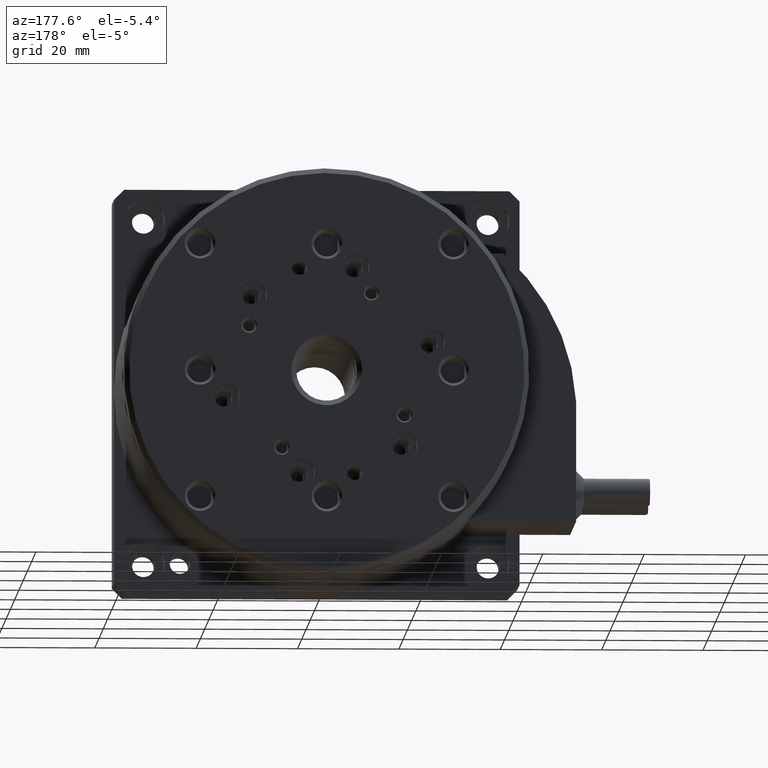
[diagram: clean part render]
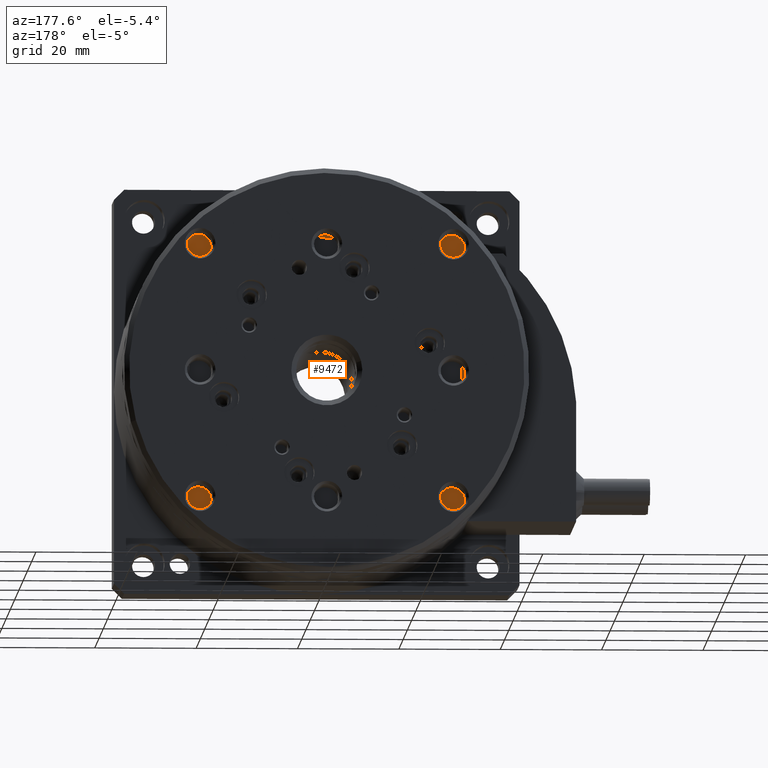
[diagram: same view with one face highlighted and labeled with its STEP entity id]
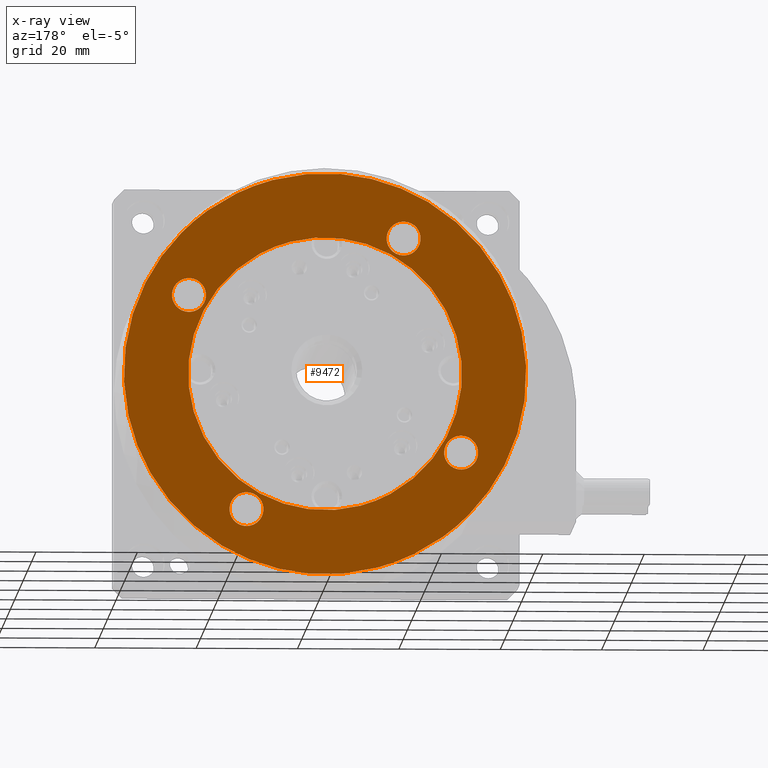
[diagram: x-ray of the same camera — body ghosted, the highlighted face saturated]
A machine part, auxiliary view. The second image highlights one B-rep face of the part: STEP entity #9472.
The next image is the same camera in x-ray: the body ghosted, the highlighted face saturated — about 0% of this face is hidden behind the body in this view.
In plain terms, the highlighted planar face has unit normal (-0, 1, -0).
Its self-contained STEP definition (entity closure, byte-faithful):
#5 = CARTESIAN_POINT ( 'NONE',  ( 24.60547161763694700, 49.69999999999996700, 17.80144501204211900 ) ) ;
#7 = CARTESIAN_POINT ( 'NONE',  ( 55.85065379954467300, 49.69999999999997400, 16.49699197548127200 ) ) ;
#41 = CARTESIAN_POINT ( 'NONE',  ( 66.55846657191811700, 49.69999999999996700, 35.01514571116283700 ) ) ;
#54 = B_SPLINE_CURVE_WITH_KNOTS ( 'NONE', 3,
 ( #24976, #11149, #25055, #15001, #20825, #13136, #16980, #25137, #22801, #1253, #5042, #2964, #1342, #18894, #15092, #3224, #16812, #3308, #17146, #5305, #19139, #8901, #7247, #10908, #12873, #24806, #1082, #15330, #5550, #1666, #13484, #9337, #9587, #5464, #23248, #3478, #7419, #17309, #19310, #21329, #13311 ),
 .UNSPECIFIED., .F., .F.,
 ( 4, 1, 1, 1, 1, 2, 2, 2, 1, 1, 1, 1, 2, 2, 2, 1, 1, 1, 2, 2, 2, 1, 1, 1, 1, 2, 2, 4 ),
 ( 0.0000000000000000000, 0.06249999999992647500, 0.09374999999989179500, 0.1093749999998765300, 0.1171874999998688300, 0.1210937499998670100, 0.1249999999998651900, 0.2499999999999012500, 0.3124999999999209000, 0.3437499999999301100, 0.3593749999999341100, 0.3671874999999361600, 0.3710937499999360000, 0.3749999999999358300, 0.4999999999999353900, 0.5624999999999351600, 0.5937499999999341600, 0.6093749999999336100, 0.6171874999999342700, 0.6249999999999349400, 0.7499999999999434900, 0.8124999999999487100, 0.8437499999999525900, 0.8593749999999544800, 0.8671874999999574800, 0.8710937499999569200, 0.8749999999999562600, 1.000000000000000000 ),
 .UNSPECIFIED. ) ;
#127 = CARTESIAN_POINT ( 'NONE',  ( 66.83353467866068300, 49.69999999999995300, 42.99368672949749000 ) ) ;
#164 = CARTESIAN_POINT ( 'NONE',  ( 21.82781003695217900, 49.69999999999996700, 68.86720982089202900 ) ) ;
#179 = CARTESIAN_POINT ( 'NONE',  ( 53.19297107770661600, 49.69999999999996000, 10.71883005993742600 ) ) ;
#212 = CARTESIAN_POINT ( 'NONE',  ( 65.77488028343350400, 49.69999999999996000, 48.04233557714231000 ) ) ;
#248 = CARTESIAN_POINT ( 'NONE',  ( 27.63221435416022200, 49.69999999999996700, 68.12148453216234100 ) ) ;
#333 = CARTESIAN_POINT ( 'NONE',  ( 21.14678803278908200, 49.69999999999996000, 66.83108420134102800 ) ) ;
#361 = CARTESIAN_POINT ( 'NONE',  ( 57.57758993226040900, 49.69999999999996700, 15.78148359908367500 ) ) ;
#377 = ORIENTED_EDGE ( 'NONE', *, *, #2439, .T. ) ;
#380 = CARTESIAN_POINT ( 'NONE',  ( 51.78968904176253600, 49.69999999999996700, 64.29009191646922300 ) ) ;
#404 = CARTESIAN_POINT ( 'NONE',  ( 12.95316398541676000, 49.69999999999996000, 27.84485536564729100 ) ) ;
#446 = CARTESIAN_POINT ( 'NONE',  ( 58.08604474574119100, 49.69999999999995300, 15.30529042585084000 ) ) ;
#567 = VERTEX_POINT ( 'NONE', #10539 ) ;
#578 = CARTESIAN_POINT ( 'NONE',  ( 10.84618356038517300, 49.69999999999996700, 22.06561757726024100 ) ) ;
#660 = CARTESIAN_POINT ( 'NONE',  ( 13.50386628222084600, 49.69999999999995300, 27.84377949280056800 ) ) ;
#664 = CARTESIAN_POINT ( 'NONE',  ( 16.48433841093642400, 49.69999999999997400, 24.85623680331272200 ) ) ;
#732 = B_SPLINE_CURVE_WITH_KNOTS ( 'NONE', 3,
 ( #16548, #9045, #6888, #11127, #20880, #24948, #13016, #22956, #1142, #11050, #23045, #15061, #12677, #17037, #1055, #7142, #6804, #20800, #22777, #24780, #3200, #10802, #12847, #21040, #9134, #14887, #14709, #3031, #2855, #24690, #16709, #16866, #5019, #8957, #10966, #24863, #3368, #7305, #25198, #21386, #13463, #21213, #5605, #17120, #25116, #1641, #5280, #1562, #1399, #17464, #3542, #13109, #25287, #23217, #7221, #13191, #15223, #17205, #5357, #21136, #5437, #19116, #21471, #23307, #19198, #15153, #23478, #1479, #15393, #3281, #9224, #23130, #19455, #11443, #7558, #9315, #11204, #9560, #17366, #25363, #11284, #13285, #15308, #3451, #19290, #3623, #17286, #7393, #21303, #9391, #11365, #19371, #13367, #5526, #25026, #7473, #9475, #23394, #1312, #15480, #5934, #3973, #5, #13802, #21902, #19805, #9982, #15910, #25619, #17893, #3715, #13635, #17637, #5770 ),
 .UNSPECIFIED., .F., .F.,
 ( 4, 1, 1, 1, 1, 1, 2, 2, 1, 1, 1, 1, 1, 2, 2, 1, 1, 1, 1, 2, 2, 2, 1, 1, 1, 1, 2, 2, 1, 1, 1, 1, 1, 2, 2, 1, 1, 1, 1, 1, 2, 2, 2, 1, 1, 1, 1, 1, 2, 2, 1, 1, 1, 1, 1, 2, 2, 1, 1, 1, 1, 2, 2, 2, 1, 1, 1, 1, 2, 2, 1, 1, 1, 1, 1, 2, 2, 1, 1, 1, 1, 1, 2, 2, 4 ),
 ( 0.0000000000000000000, 0.03124999999998495000, 0.04687499999997742100, 0.05468749999997379200, 0.05859374999997210600, 0.06054687499997124500, 0.06152343749997083600, 0.06249999999997042600, 0.09374999999996051800, 0.1093749999999554500, 0.1171874999999529400, 0.1210937499999516600, 0.1230468749999511400, 0.1240234374999510000, 0.1249999999999508700, 0.1562499999999504000, 0.1718749999999502300, 0.1796874999999502600, 0.1835937499999503500, 0.1855468749999504800, 0.1874999999999506200, 0.2499999999999549800, 0.2812499999999572000, 0.2968749999999583100, 0.3046874999999588100, 0.3085937499999590300, 0.3105468749999591400, 0.3124999999999592500, 0.3437499999999618600, 0.3593749999999630300, 0.3671874999999637500, 0.3710937499999640300, 0.3730468749999640300, 0.3740234374999640800, 0.3749999999999640800, 0.4062499999999664700, 0.4218749999999676900, 0.4296874999999682500, 0.4335937499999686400, 0.4355468749999688600, 0.4365234374999690800, 0.4374999999999692500, 0.4999999999999859000, 0.5312499999999943400, 0.5468749999999986700, 0.5546875000000007800, 0.5585937500000017800, 0.5605468750000021100, 0.5615234375000022200, 0.5625000000000023300, 0.5937500000000079900, 0.6093750000000107700, 0.6171875000000121000, 0.6210937500000127700, 0.6230468750000128800, 0.6240234375000128800, 0.6250000000000128800, 0.6562500000000147700, 0.6718750000000156500, 0.6796875000000163200, 0.6835937500000166500, 0.6855468750000166500, 0.6875000000000167600, 0.7500000000000179900, 0.7812500000000186500, 0.7968750000000189800, 0.8046875000000191000, 0.8085937500000192100, 0.8105468750000193200, 0.8125000000000193200, 0.8437500000000199800, 0.8593750000000202100, 0.8671875000000203200, 0.8710937500000204300, 0.8730468750000204300, 0.8740234375000203200, 0.8750000000000203200, 0.9062500000000166500, 0.9218750000000148800, 0.9296875000000139900, 0.9335937500000134300, 0.9355468750000133200, 0.9365234375000131000, 0.9375000000000129900, 1.000000000000000000 ),
 .UNSPECIFIED. ) ;
#740 = CARTESIAN_POINT ( 'NONE',  ( 10.52494136628061700, 49.69999999999996000, 26.57758993226010300 ) ) ;
#746 = CARTESIAN_POINT ( 'NONE',  ( 14.80864816522192000, 49.69999999999996700, 27.44343372567827500 ) ) ;
#767 = CARTESIAN_POINT ( 'NONE',  ( 11.87042146741621500, 49.69999999999997400, 68.13482327430983800 ) ) ;
#828 = CARTESIAN_POINT ( 'NONE',  ( 16.49701036439867600, 49.69999999999996000, 24.14918701003761800 ) ) ;
#842 = EDGE_LOOP ( 'NONE', ( #377, #18083 ) ) ;
#853 = CARTESIAN_POINT ( 'NONE',  ( 47.76529410000028300, 49.69999999999997400, 79.01976007919512300 ) ) ;
#897 = CARTESIAN_POINT ( 'NONE',  ( 66.83096480853494400, 49.69999999999996000, 58.85319817552166900 ) ) ;
#917 = CARTESIAN_POINT ( 'NONE',  ( 13.44562075777002400, 49.69999999999996700, 21.16257907709884000 ) ) ;
#952 = CARTESIAN_POINT ( 'NONE',  ( 23.63295619890636700, 49.69999999999996000, 63.61093599924907900 ) ) ;
#983 = CARTESIAN_POINT ( 'NONE',  ( 63.71457316316259100, 49.69999999999996700, 54.22530298515217600 ) ) ;
#1003 = CARTESIAN_POINT ( 'NONE',  ( 13.48525642331814300, 49.69999999999996700, 21.16646448923473400 ) ) ;
#1055 = CARTESIAN_POINT ( 'NONE',  ( 37.27822759362383200, 49.69999999999996700, 66.86286688931070900 ) ) ;
#1066 = CARTESIAN_POINT ( 'NONE',  ( 66.48830804328888200, 49.69999999999994600, 58.83078985325518300 ) ) ;
#1082 = CARTESIAN_POINT ( 'NONE',  ( 70.18040326435402700, 49.69999999999996000, 55.83201603163831100 ) ) ;
#1103 = CARTESIAN_POINT ( 'NONE',  ( 26.57758993225819600, 49.69999999999995300, 69.47505863372086300 ) ) ;
#1108 = CARTESIAN_POINT ( 'NONE',  ( 20.11074170673551000, 49.69999999999996000, 5.543376926325784400 ) ) ;
#1142 = CARTESIAN_POINT ( 'NONE',  ( 42.17730107135700700, 49.69999999999998200, 66.91207886080933100 ) ) ;
#1237 = CARTESIAN_POINT ( 'NONE',  ( 63.72116618576865900, 49.69999999999997400, 56.77816809337788600 ) ) ;
#1247 = CARTESIAN_POINT ( 'NONE',  ( 57.69943053108983800, 49.69999999999996000, 19.60993232101416300 ) ) ;
#1253 = CARTESIAN_POINT ( 'NONE',  ( 67.69085357770235600, 49.69999999999994600, 52.22522578459821600 ) ) ;
#1312 = CARTESIAN_POINT ( 'NONE',  ( 23.74278234373262500, 49.69999999999995300, 18.44289670455563600 ) ) ;
#1332 = CARTESIAN_POINT ( 'NONE',  ( 48.36687651382749200, 49.69999999999995300, 14.32902987868764700 ) ) ;
#1342 = CARTESIAN_POINT ( 'NONE',  ( 68.99886546048824700, 49.69999999999996000, 52.91395525426003100 ) ) ;
#1399 = CARTESIAN_POINT ( 'NONE',  ( 16.31820122052172900, 49.69999999999995300, 52.98139377118469200 ) ) ;
#1416 = CARTESIAN_POINT ( 'NONE',  ( 65.08345567544806400, 49.69999999999997400, 29.87339505704809300 ) ) ;
#1479 = CARTESIAN_POINT ( 'NONE',  ( 12.97503915085267300, 49.69999999999996700, 39.94500737424281300 ) ) ;
#1500 = CARTESIAN_POINT ( 'NONE',  ( 66.89993292846492100, 49.69999999999996000, 42.34102793441129400 ) ) ;
#1562 = CARTESIAN_POINT ( 'NONE',  ( 17.07291587732115100, 49.69999999999994600, 54.30735154089236300 ) ) ;
#1641 = CARTESIAN_POINT ( 'NONE',  ( 18.33972293519479300, 49.69999999999997400, 56.11933986563688800 ) ) ;
#1666 = CARTESIAN_POINT ( 'NONE',  ( 69.97900187147027400, 49.69999999999998200, 56.77469701485205200 ) ) ;
#1732 = CARTESIAN_POINT ( 'NONE',  ( 56.34406606037767800, 49.69999999999995300, 9.878438267276637300 ) ) ;
#1817 = CARTESIAN_POINT ( 'NONE',  ( 58.84379788171958100, 49.69999999999998200, 12.80239949273669700 ) ) ;
#1829 = CARTESIAN_POINT ( 'NONE',  ( 79.78494005705921700, 49.69999999999996700, 39.99629140755995800 ) ) ;
#1861 = B_SPLINE_CURVE_WITH_KNOTS ( 'NONE', 3,
 ( #21891, #16236, #18046, #16328, #11934, #12110, #4126, #17879, #4382, #17965, #10144, #6171, #6007, #18231, #8068, #22055, #23885, #164, #13959, #15974, #6087, #24044, #19960, #333, #2294, #16586, #2725, #24305, #24564, #20406, #12384, #18402, #22399, #4561, #6506, #8489, #2549, #16666, #14409, #10669, #14755 ),
 .UNSPECIFIED., .F., .F.,
 ( 4, 1, 1, 1, 1, 2, 2, 2, 1, 1, 1, 1, 2, 2, 2, 1, 1, 1, 2, 2, 2, 1, 1, 1, 1, 2, 2, 4 ),
 ( 0.0000000000000000000, 0.06249999999999100700, 0.09374999999998635800, 0.1093749999999834700, 0.1171874999999824000, 0.1210937499999820600, 0.1249999999999817000, 0.2499999999999472900, 0.3124999999999301100, 0.3437499999999202300, 0.3593749999999150100, 0.3671874999999123500, 0.3710937499999125100, 0.3749999999999126800, 0.4999999999998801000, 0.5624999999998658900, 0.5937499999998567800, 0.6093749999998521200, 0.6171874999998519000, 0.6249999999998516700, 0.7499999999999000800, 0.8124999999999242800, 0.8437499999999366100, 0.8593749999999411600, 0.8671874999999426000, 0.8710937499999429300, 0.8749999999999432700, 1.000000000000000000 ),
 .UNSPECIFIED. ) ;
#1900 = CARTESIAN_POINT ( 'NONE',  ( 55.85847947402839300, 49.69999999999995300, 9.822422629427265400 ) ) ;
#1931 = CARTESIAN_POINT ( 'NONE',  ( 54.30697348189522700, 49.69999999999996700, 17.08319899643835200 ) ) ;
#1988 = CARTESIAN_POINT ( 'NONE',  ( 79.01976007919516600, 49.69999999999996000, 32.23470589999973900 ) ) ;
#2066 = CARTESIAN_POINT ( 'NONE',  ( 52.15513658920087900, 49.69999999999996700, 12.95323363122441400 ) ) ;
#2097 = CARTESIAN_POINT ( 'NONE',  ( 66.49171311495712200, 49.69999999999996000, 45.35325817510141600 ) ) ;
#2147 = CARTESIAN_POINT ( 'NONE',  ( 52.82781003695235700, 49.69999999999996700, 15.17363478625710200 ) ) ;
#2175 = CARTESIAN_POINT ( 'NONE',  ( 50.27511609057029300, 49.69999999999996000, 78.34725530367599300 ) ) ;
#2176 = CARTESIAN_POINT ( 'NONE',  ( 48.58346669700809900, 49.69999999999996700, 65.65252390134948300 ) ) ;
#2214 = CARTESIAN_POINT ( 'NONE',  ( 27.08604474573255100, 49.69999999999996700, 68.99886546049494000 ) ) ;
#2294 = CARTESIAN_POINT ( 'NONE',  ( 21.15513658920066600, 49.69999999999996700, 66.64680866585553100 ) ) ;
#2374 = CARTESIAN_POINT ( 'NONE',  ( 27.83112592825421000, 49.69999999999996700, 67.20302432062906900 ) ) ;
#2405 = CARTESIAN_POINT ( 'NONE',  ( 58.84486341079936300, 49.69999999999996000, 13.35319133414485600 ) ) ;
#2439 = EDGE_CURVE ( 'NONE', #21603, #13278, #11909, .T. ) ;
#2450 = CARTESIAN_POINT ( 'NONE',  ( 12.78262776004474200, 49.69999999999996700, 27.82946852493524800 ) ) ;
#2462 = CARTESIAN_POINT ( 'NONE',  ( 26.65207794317620900, 49.69999999999996000, 64.26074277158197400 ) ) ;
#2535 = CARTESIAN_POINT ( 'NONE',  ( 14.02025628377586500, 49.69999999999996000, 27.73585151806842200 ) ) ;
#2539 = CARTESIAN_POINT ( 'NONE',  ( 12.80255868314390500, 49.69999999999995300, 21.15622050719953500 ) ) ;
#2549 = CARTESIAN_POINT ( 'NONE',  ( 22.47957769642510000, 49.69999999999998900, 64.17459755426989400 ) ) ;
#2621 = CARTESIAN_POINT ( 'NONE',  ( 9.808349071884455500, 49.69999999999996000, 24.30002114854261900 ) ) ;
#2725 = CARTESIAN_POINT ( 'NONE',  ( 21.16638425296310200, 49.69999999999996000, 66.51477148567762800 ) ) ;
#2731 = CARTESIAN_POINT ( 'NONE',  ( 0.9787928998182050500, 49.69999999999996000, 32.24198056575214400 ) ) ;
#2799 = CARTESIAN_POINT ( 'NONE',  ( 15.16116171908136700, 49.69999999999998200, 27.18156730319847000 ) ) ;
#2822 = CARTESIAN_POINT ( 'NONE',  ( 29.69931757975429000, 49.69999999999996700, 78.42834124412196700 ) ) ;
#2855 = CARTESIAN_POINT ( 'NONE',  ( 28.11394696380377000, 49.69999999999998200, 64.31445569943383600 ) ) ;
#2878 = CARTESIAN_POINT ( 'NONE',  ( 16.42798669809033300, 49.69999999999998200, 25.34406606037393300 ) ) ;
#2900 = CARTESIAN_POINT ( 'NONE',  ( 26.65599122631261500, 49.69999999999995300, 69.41212808497897400 ) ) ;
#2948 = CARTESIAN_POINT ( 'NONE',  ( 64.28144694965746500, 49.69999999999996000, 57.65599122631486800 ) ) ;
#2959 = CARTESIAN_POINT ( 'NONE',  ( 36.43909188775336400, 49.69999999999996000, 13.23015256690237300 ) ) ;
#2964 = CARTESIAN_POINT ( 'NONE',  ( 68.72193900989128700, 49.69999999999996700, 52.71432952305917800 ) ) ;
#2968 = CARTESIAN_POINT ( 'NONE',  ( 14.43190709642169400, 49.69999999999996000, 27.62555001525635500 ) ) ;
#3031 = CARTESIAN_POINT ( 'NONE',  ( 29.80716252949510900, 49.69999999999997400, 65.07151909288352000 ) ) ;
#3122 = CARTESIAN_POINT ( 'NONE',  ( 67.50817820631235100, 49.69999999999996000, 58.79095610337611800 ) ) ;
#3166 = CARTESIAN_POINT ( 'NONE',  ( 29.72488390942978900, 49.69999999999996000, 1.652744696323968500 ) ) ;
#3200 = CARTESIAN_POINT ( 'NONE',  ( 34.64674182494256600, 49.69999999999996000, 66.49171311497229900 ) ) ;
#3210 = CARTESIAN_POINT ( 'NONE',  ( 64.21851640091497900, 49.69999999999996000, 57.57758993225942100 ) ) ;
#3220 = CARTESIAN_POINT ( 'NONE',  ( 55.47531314621279100, 49.69999999999996000, 17.84041726713222100 ) ) ;
#3224 = CARTESIAN_POINT ( 'NONE',  ( 69.47505863371947000, 49.69999999999996700, 53.42241006773985400 ) ) ;
#3238 = CARTESIAN_POINT ( 'NONE',  ( 32.23470589999981000, 49.69999999999996000, 0.9802399208048479000 ) ) ;
#3247 = CARTESIAN_POINT ( 'NONE',  ( 25.77869461374124400, 49.69999999999998200, 69.97233753257319200 ) ) ;
#3281 = CARTESIAN_POINT ( 'NONE',  ( 13.10006707154014400, 49.69999999999996000, 37.65897206558233300 ) ) ;
#3303 = CARTESIAN_POINT ( 'NONE',  ( 47.66139228332641400, 49.69999999999993900, 14.10796203541025300 ) ) ;
#3308 = CARTESIAN_POINT ( 'NONE',  ( 69.51897748036519400, 49.69999999999997400, 53.47957769642516000 ) ) ;
#3368 = CARTESIAN_POINT ( 'NONE',  ( 22.03761147199243500, 49.69999999999996000, 60.15826848492967100 ) ) ;
#3387 = CARTESIAN_POINT ( 'NONE',  ( 42.91211663383652600, 49.69999999999995300, 13.15740485015912100 ) ) ;
#3451 = CARTESIAN_POINT ( 'NONE',  ( 14.92848090707091300, 49.69999999999996000, 29.80716252959954800 ) ) ;
#3469 = CARTESIAN_POINT ( 'NONE',  ( 37.77127102098043600, 49.69999999999997400, 13.09213111239661000 ) ) ;
#3478 = CARTESIAN_POINT ( 'NONE',  ( 68.89015922796836800, 49.69999999999996000, 58.15469523935253400 ) ) ;
#3491 = CARTESIAN_POINT ( 'NONE',  ( 14.02025628377586500, 49.69999999999996000, 27.73585151806842200 ) ) ;
#3542 = CARTESIAN_POINT ( 'NONE',  ( 15.79383097809276700, 49.69999999999997400, 51.96173209916830200 ) ) ;
#3623 = CARTESIAN_POINT ( 'NONE',  ( 17.08319899642925000, 49.69999999999997400, 25.69302651811646900 ) ) ;
#3715 = CARTESIAN_POINT ( 'NONE',  ( 28.35966319876990100, 49.69999999999996000, 15.63807894343815400 ) ) ;
#3717 = CARTESIAN_POINT ( 'NONE',  ( 58.15469523935336600, 49.69999999999996700, 11.10984077203210800 ) ) ;
#3799 = CARTESIAN_POINT ( 'NONE',  ( 52.16151217033957700, 49.69999999999997400, 12.87404039118822800 ) ) ;
#3800 = CARTESIAN_POINT ( 'NONE',  ( 58.79096661132996400, 49.69999999999997400, 12.49173082774074200 ) ) ;
#3811 = CARTESIAN_POINT ( 'NONE',  ( 62.10641200008964800, 49.69999999999998200, 73.07790830115688200 ) ) ;
#3887 = CARTESIAN_POINT ( 'NONE',  ( 58.83848782966063600, 49.69999999999997400, 13.43238457417925400 ) ) ;
#3919 = CARTESIAN_POINT ( 'NONE',  ( 57.96238852800504300, 49.69999999999995300, 19.84173151506776700 ) ) ;
#3973 = CARTESIAN_POINT ( 'NONE',  ( 23.88066013436248300, 49.69999999999996000, 18.33972293519513000 ) ) ;
#4087 = CARTESIAN_POINT ( 'NONE',  ( 66.82443937507743200, 49.69999999999996700, 43.07412352508744400 ) ) ;
#4124 = CARTESIAN_POINT ( 'NONE',  ( 27.84486341079889000, 49.69999999999996700, 67.04676636877491100 ) ) ;
#4126 = CARTESIAN_POINT ( 'NONE',  ( 24.16795605936417600, 49.69999999999996000, 70.18032302808273900 ) ) ;
#4210 = CARTESIAN_POINT ( 'NONE',  ( 27.62562133154576600, 49.69999999999995300, 65.56861942393341300 ) ) ;
#4255 = CARTESIAN_POINT ( 'NONE',  ( 60.15826848493105000, 49.69999999999995300, 57.96238852800613000 ) ) ;
#4326 = CARTESIAN_POINT ( 'NONE',  ( 55.51582270877775500, 49.69999999999997400, 9.800014307162014000 ) ) ;
#4370 = CARTESIAN_POINT ( 'NONE',  ( 11.87851546782962600, 49.69999999999994600, 27.63221435415221800 ) ) ;
#4374 = EDGE_CURVE ( 'NONE', #12598, #9324, #17596, .T. ) ;
#4381 = CARTESIAN_POINT ( 'NONE',  ( 27.77477421540171300, 49.69999999999996700, 67.69085357770809700 ) ) ;
#4382 = CARTESIAN_POINT ( 'NONE',  ( 24.12941527736223800, 49.69999999999996000, 70.17625604225267500 ) ) ;
#4433 = DIRECTION ( 'NONE',  ( -1.157774506412518600E-031, 1.000000000000000000, -1.090430749950198600E-030 ) ) ;
#4459 = CARTESIAN_POINT ( 'NONE',  ( 11.00113453951183300, 49.69999999999994600, 27.08604474573993000 ) ) ;
#4473 = CARTESIAN_POINT ( 'NONE',  ( 27.15469523935317000, 49.69999999999997400, 64.80341580666737400 ) ) ;
#4561 = CARTESIAN_POINT ( 'NONE',  ( 22.34400877368406000, 49.69999999999997400, 64.28144694965867200 ) ) ;
#4630 = CARTESIAN_POINT ( 'NONE',  ( 10.02759115113354200, 49.69999999999996700, 25.77816809338394300 ) ) ;
#4654 = CARTESIAN_POINT ( 'NONE',  ( 22.40024483625324300, 49.69999999999995300, 75.68038799219559100 ) ) ;
#4704 = B_SPLINE_CURVE_WITH_KNOTS ( 'NONE', 3,
 ( #23482, #10265, #9651, #4326, #8347, #6369, #22257, #1900, #23653, #1732, #22169, #7819, #7731, #15663, #12227, #20164, #3717, #17549, #11698, #14258, #25542, #3800, #1817, #15746, #2405, #3887, #17726, #24160, #5857, #19720, #21731, #446, #9823, #18157, #361, #23730, #20686, #18610, #8770, #14694, #24416 ),
 .UNSPECIFIED., .F., .F.,
 ( 4, 1, 1, 1, 1, 2, 2, 2, 1, 1, 1, 1, 2, 2, 2, 1, 1, 1, 2, 2, 2, 1, 1, 1, 1, 2, 2, 4 ),
 ( 0.0000000000000000000, 0.06249999999999397700, 0.09374999999999202000, 0.1093749999999920600, 0.1171874999999921000, 0.1210937499999921000, 0.1249999999999920900, 0.2499999999999909000, 0.3124999999999894500, 0.3437499999999887300, 0.3593749999999890100, 0.3671874999999891800, 0.3710937499999892300, 0.3749999999999892900, 0.5000000000000045500, 0.5625000000000124300, 0.5937500000000164300, 0.6093750000000183200, 0.6171875000000192100, 0.6250000000000201000, 0.7500000000000345300, 0.8125000000000414100, 0.8437500000000448500, 0.8593750000000467400, 0.8671875000000469600, 0.8710937500000460700, 0.8750000000000450800, 1.000000000000000000 ),
 .UNSPECIFIED. ) ;
#4719 = CARTESIAN_POINT ( 'NONE',  ( 16.48682822971872500, 49.69999999999996000, 24.83201603163769300 ) ) ;
#4742 = CARTESIAN_POINT ( 'NONE',  ( 4.319612007804433800, 49.69999999999996000, 22.40024483625317200 ) ) ;
#4800 = CARTESIAN_POINT ( 'NONE',  ( 15.58759490542470900, 49.69999999999994600, 22.19297107770423900 ) ) ;
#4805 = VERTEX_POINT ( 'NONE', #2175 ) ;
#4852 = CARTESIAN_POINT ( 'NONE',  ( 65.57209050246935100, 49.69999999999996000, 58.63221435415467700 ) ) ;
#4941 = CARTESIAN_POINT ( 'NONE',  ( 66.55437924223007000, 49.69999999999995300, 58.83742092290113100 ) ) ;
#4962 = CARTESIAN_POINT ( 'NONE',  ( 13.52379720532007600, 49.69999999999994600, 21.17053147506485200 ) ) ;
#4985 = CARTESIAN_POINT ( 'NONE',  ( 11.86517672569019800, 49.69999999999996000, 11.87042146741613800 ) ) ;
#5019 = CARTESIAN_POINT ( 'NONE',  ( 22.60908665171025300, 49.69999999999996000, 60.65562855817457700 ) ) ;
#5030 = CARTESIAN_POINT ( 'NONE',  ( 63.57201330190975600, 49.69999999999995300, 54.65593393962601700 ) ) ;
#5042 = CARTESIAN_POINT ( 'NONE',  ( 68.12148453217044200, 49.69999999999996000, 52.36778564584771800 ) ) ;
#5068 = ORIENTED_EDGE ( 'NONE', *, *, #22550, .F. ) ;
#5110 = CARTESIAN_POINT ( 'NONE',  ( 64.26074277158031100, 49.69999999999996000, 53.34792205682491300 ) ) ;
#5199 = CARTESIAN_POINT ( 'NONE',  ( 63.50298963560141600, 49.69999999999997400, 55.85081298996235700 ) ) ;
#5210 = CARTESIAN_POINT ( 'NONE',  ( 44.00863943281141400, 49.69999999999997400, 13.28363929803929400 ) ) ;
#5232 = CARTESIAN_POINT ( 'NONE',  ( 39.99629140756000100, 49.69999999999996700, 0.2150599429408121000 ) ) ;
#5242 = CARTESIAN_POINT ( 'NONE',  ( 26.52042230357406900, 49.69999999999997400, 69.51897748036545000 ) ) ;
#5280 = CARTESIAN_POINT ( 'NONE',  ( 17.80144501205494800, 49.69999999999996700, 55.39452838238413100 ) ) ;
#5296 = CARTESIAN_POINT ( 'NONE',  ( 66.76983822078212000, 49.69999999999995300, 36.43897527652802600 ) ) ;
#5305 = CARTESIAN_POINT ( 'NONE',  ( 69.79011193760315700, 49.69999999999997400, 53.84441717513861600 ) ) ;
#5357 = CARTESIAN_POINT ( 'NONE',  ( 13.44153342806517200, 49.69999999999995300, 44.98485428877440000 ) ) ;
#5376 = VERTEX_POINT ( 'NONE', #952 ) ;
#5378 = CARTESIAN_POINT ( 'NONE',  ( 66.96015524759432900, 49.69999999999996000, 41.57931492235979200 ) ) ;
#5437 = CARTESIAN_POINT ( 'NONE',  ( 13.14886217213688900, 49.69999999999994600, 42.84485712198949200 ) ) ;
#5459 = CARTESIAN_POINT ( 'NONE',  ( 48.31378816137293300, 49.69999999999998200, 14.31178949889007200 ) ) ;
#5464 = CARTESIAN_POINT ( 'NONE',  ( 69.00277874363349900, 49.69999999999996700, 58.06534056765870100 ) ) ;
#5526 = CARTESIAN_POINT ( 'NONE',  ( 20.48806057713063200, 49.69999999999996700, 21.31531725423634100 ) ) ;
#5550 = CARTESIAN_POINT ( 'NONE',  ( 70.12156173272447300, 49.69999999999998200, 56.34406606037579500 ) ) ;
#5605 = CARTESIAN_POINT ( 'NONE',  ( 18.44289670455832900, 49.69999999999996000, 56.25721765627003600 ) ) ;
#5691 = FACE_BOUND ( 'NONE', #8926, .T. ) ;
#5701 = CARTESIAN_POINT ( 'NONE',  ( 79.44505844808611500, 49.69999999999996700, 34.81070013156632100 ) ) ;
#5770 = CARTESIAN_POINT ( 'NONE',  ( 33.01188578223187200, 49.69999999999996000, 13.92000269019516200 ) ) ;
#5772 = CARTESIAN_POINT ( 'NONE',  ( 55.29995150273715200, 49.69999999999996700, 16.49806784832893300 ) ) ;
#5804 = ORIENTED_EDGE ( 'NONE', *, *, #22064, .T. ) ;
#5856 = CARTESIAN_POINT ( 'NONE',  ( 52.91395525426555200, 49.69999999999993900, 11.00113453950435300 ) ) ;
#5857 = CARTESIAN_POINT ( 'NONE',  ( 58.77477421539997900, 49.69999999999996700, 13.99727854307012500 ) ) ;
#5886 = CARTESIAN_POINT ( 'NONE',  ( 64.20616902191423500, 49.69999999999996000, 28.03826790084733700 ) ) ;
#5934 = CARTESIAN_POINT ( 'NONE',  ( 23.85686397202213600, 49.69999999999996000, 18.35745072175729200 ) ) ;
#5935 = CARTESIAN_POINT ( 'NONE',  ( 53.62484850742473700, 49.69999999999996000, 15.93888295962272600 ) ) ;
#5944 = CARTESIAN_POINT ( 'NONE',  ( 57.59975516374682100, 49.69999999999995300, 4.319612007804362700 ) ) ;
#5948 = AXIS2_PLACEMENT_3D ( 'NONE', #10369, #4433, #18363 ) ;
#6007 = CARTESIAN_POINT ( 'NONE',  ( 22.34792205682725800, 49.69999999999998200, 69.43283226305516100 ) ) ;
#6048 = CARTESIAN_POINT ( 'NONE',  ( 58.55284798787275200, 49.69999999999996700, 59.65350149946030500 ) ) ;
#6086 = CARTESIAN_POINT ( 'NONE',  ( 27.17218996304774600, 49.69999999999996700, 64.82636521374303100 ) ) ;
#6087 = CARTESIAN_POINT ( 'NONE',  ( 21.37437866845413500, 49.69999999999998200, 68.12495561071317200 ) ) ;
#6101 = CARTESIAN_POINT ( 'NONE',  ( 56.16139068899824600, 49.69999999999996000, 16.44416858605766100 ) ) ;
#6135 = CARTESIAN_POINT ( 'NONE',  ( 60.27488733636362600, 49.69999999999997400, 57.83066498027263700 ) ) ;
#6170 = CARTESIAN_POINT ( 'NONE',  ( 25.34406606037759600, 49.69999999999996000, 63.57201330191057300 ) ) ;
#6171 = CARTESIAN_POINT ( 'NONE',  ( 22.62484850742509200, 49.69999999999996000, 69.63245799425692400 ) ) ;
#6215 = CARTESIAN_POINT ( 'NONE',  ( 50.12644400536283500, 49.69999999999997400, 65.08353238786489200 ) ) ;
#6239 = CARTESIAN_POINT ( 'NONE',  ( 10.58787191502388900, 49.69999999999994600, 26.65599122631595100 ) ) ;
#6251 = CARTESIAN_POINT ( 'NONE',  ( 26.93438242274355300, 49.69999999999995300, 64.53975859502328700 ) ) ;
#6328 = CARTESIAN_POINT ( 'NONE',  ( 12.79473300865360500, 49.69999999999996700, 27.83078985325530800 ) ) ;
#6341 = CARTESIAN_POINT ( 'NONE',  ( 23.63295619890636700, 49.69999999999996000, 63.61093599924907900 ) ) ;
#6369 = CARTESIAN_POINT ( 'NONE',  ( 55.79240827508611000, 49.69999999999996700, 9.815791559781615700 ) ) ;
#6407 = CARTESIAN_POINT ( 'NONE',  ( 10.47164176369046200, 49.69999999999995300, 26.50794463820143300 ) ) ;
#6468 = CARTESIAN_POINT ( 'NONE',  ( 65.97974371622422000, 49.69999999999996000, 52.26414848193153500 ) ) ;
#6495 = CARTESIAN_POINT ( 'NONE',  ( 11.13279017910767800, 49.69999999999997400, 21.82781003695249200 ) ) ;
#6506 = CARTESIAN_POINT ( 'NONE',  ( 22.42241006773985400, 49.69999999999996700, 64.21851640091551900 ) ) ;
#6517 = CARTESIAN_POINT ( 'NONE',  ( 2.325249471843150200, 49.69999999999997400, 52.78493808114025400 ) ) ;
#6572 = CARTESIAN_POINT ( 'NONE',  ( 11.27806099010880900, 49.69999999999996700, 27.28567047694076900 ) ) ;
#6655 = VERTEX_POINT ( 'NONE', #14649 ) ;
#6683 = CARTESIAN_POINT ( 'NONE',  ( 56.36704380109353000, 49.69999999999996000, 16.38906400075077500 ) ) ;
#6684 = CARTESIAN_POINT ( 'NONE',  ( 8.438742560478791800, 49.69999999999996700, 15.77752081363853500 ) ) ;
#6804 = CARTESIAN_POINT ( 'NONE',  ( 37.00631327050155100, 49.69999999999998200, 66.83353467865984500 ) ) ;
#6827 = CARTESIAN_POINT ( 'NONE',  ( 16.09653690296692100, 49.69999999999996000, 22.84441717514062700 ) ) ;
#6840 = CARTESIAN_POINT ( 'NONE',  ( 34.81070013156635000, 49.69999999999995300, 0.5549415519139483400 ) ) ;
#6888 = CARTESIAN_POINT ( 'NONE',  ( 44.98469880714189600, 49.69999999999996000, 66.55847885502191700 ) ) ;
#6899 = CARTESIAN_POINT ( 'NONE',  ( 63.55582090598964100, 49.69999999999997400, 56.16148165495113900 ) ) ;
#6908 = FACE_BOUND ( 'NONE', #16371, .T. ) ;
#6920 = CARTESIAN_POINT ( 'NONE',  ( 15.93888295962167600, 49.69999999999996700, 26.37515149257616500 ) ) ;
#6980 = CARTESIAN_POINT ( 'NONE',  ( 64.83883828091872200, 49.69999999999996700, 52.81843269680151600 ) ) ;
#7142 = CARTESIAN_POINT ( 'NONE',  ( 37.08788336616076700, 49.69999999999996000, 66.84259514983959600 ) ) ;
#7152 = CARTESIAN_POINT ( 'NONE',  ( 66.51474357668193700, 49.69999999999996000, 58.83353551076523000 ) ) ;
#7161 = CARTESIAN_POINT ( 'NONE',  ( 56.76466511049735400, 49.69999999999994600, 18.82602269778300300 ) ) ;
#7221 = CARTESIAN_POINT ( 'NONE',  ( 15.63807774480676500, 49.69999999999996700, 51.64033428658053300 ) ) ;
#7241 = CARTESIAN_POINT ( 'NONE',  ( 43.07412352508780600, 49.69999999999997400, 13.17556062492268200 ) ) ;
#7247 = CARTESIAN_POINT ( 'NONE',  ( 70.19058539903406300, 49.69999999999996000, 55.14918701004268100 ) ) ;
#7305 = CARTESIAN_POINT ( 'NONE',  ( 21.31531725424871800, 49.69999999999996000, 59.51193942288193000 ) ) ;
#7322 = CARTESIAN_POINT ( 'NONE',  ( 37.82269892864091800, 49.69999999999994600, 13.08792113919125400 ) ) ;
#7336 = CARTESIAN_POINT ( 'NONE',  ( 25.36704380109328800, 49.69999999999996000, 70.08263903538583900 ) ) ;
#7393 = CARTESIAN_POINT ( 'NONE',  ( 18.82602269777103000, 49.69999999999996000, 23.23533488951795400 ) ) ;
#7409 = CARTESIAN_POINT ( 'NONE',  ( 40.05499262573407300, 49.69999999999996000, 12.97503915084208600 ) ) ;
#7419 = CARTESIAN_POINT ( 'NONE',  ( 68.86720982089242700, 49.69999999999997400, 58.17218996304745100 ) ) ;
#7440 = B_SPLINE_CURVE_WITH_KNOTS ( 'NONE', 3,
 ( #18747, #3238, #6840, #5232, #22911, #24735, #22815, #24901, #5944, #19647, #21829, #7828, #25631, #19473, #7744, #17473, #19728, #1988, #5701, #1829, #13566, #23823, #7658, #15670, #7917, #21567, #17559, #17737, #21653, #3811, #13732, #21743, #9831, #11614 ),
 .UNSPECIFIED., .F., .F.,
 ( 4, 2, 2, 2, 2, 2, 2, 2, 2, 2, 2, 2, 2, 2, 2, 2, 4 ),
 ( 0.0000000000000000000, 0.06250000000000004200, 0.1250000000000000800, 0.1875000000000001100, 0.2500000000000001700, 0.3125000000000002200, 0.3750000000000002200, 0.4375000000000002800, 0.5000000000000003300, 0.5625000000000003300, 0.6250000000000004400, 0.6875000000000004400, 0.7500000000000004400, 0.8125000000000005600, 0.8750000000000005600, 0.9375000000000003300, 1.000000000000000000 ),
 .UNSPECIFIED. ) ;
#7473 = CARTESIAN_POINT ( 'NONE',  ( 22.64768905395446600, 49.69999999999996000, 19.30526873247684300 ) ) ;
#7558 = CARTESIAN_POINT ( 'NONE',  ( 13.17556062492303000, 49.69999999999996000, 36.92587647491094300 ) ) ;
#7658 = CARTESIAN_POINT ( 'NONE',  ( 78.42834124412203800, 49.69999999999996700, 50.30068242024571400 ) ) ;
#7730 = CARTESIAN_POINT ( 'NONE',  ( 53.34400877368649700, 49.69999999999996700, 10.58787191502061700 ) ) ;
#7731 = CARTESIAN_POINT ( 'NONE',  ( 57.65207794317619500, 49.69999999999996000, 10.56716773694570800 ) ) ;
#7744 = CARTESIAN_POINT ( 'NONE',  ( 74.45662307367423700, 49.69999999999996700, 20.11074170673543900 ) ) ;
#7818 = CARTESIAN_POINT ( 'NONE',  ( 53.42241006774128200, 49.69999999999996700, 10.52494136627887800 ) ) ;
#7819 = CARTESIAN_POINT ( 'NONE',  ( 57.37515149257682600, 49.69999999999995300, 10.36754200574349300 ) ) ;
#7828 = CARTESIAN_POINT ( 'NONE',  ( 68.12957853258393500, 49.69999999999996700, 11.86517672569013700 ) ) ;
#7848 = CARTESIAN_POINT ( 'NONE',  ( 64.29009191646815700, 49.69999999999995300, 28.21031095823714500 ) ) ;
#7917 = CARTESIAN_POINT ( 'NONE',  ( 75.68038799219564800, 49.69999999999996700, 57.59975516374677100 ) ) ;
#7939 = CARTESIAN_POINT ( 'NONE',  ( 66.71636070195852100, 49.69999999999994600, 44.00863943282072900 ) ) ;
#8024 = CARTESIAN_POINT ( 'NONE',  ( 56.73164316652798100, 49.69999999999996000, 61.19308145710364500 ) ) ;
#8066 = CARTESIAN_POINT ( 'NONE',  ( 27.44332442028227000, 49.69999999999996000, 65.19120469245568500 ) ) ;
#8068 = CARTESIAN_POINT ( 'NONE',  ( 21.93465943234043200, 49.69999999999994600, 69.00277874363237600 ) ) ;
#8151 = CARTESIAN_POINT ( 'NONE',  ( 27.83361574703650700, 49.69999999999996000, 67.17880354895584100 ) ) ;
#8203 = CARTESIAN_POINT ( 'NONE',  ( 66.82741156835490400, 49.69999999999996000, 43.04806545953196900 ) ) ;
#8227 = CARTESIAN_POINT ( 'NONE',  ( 10.20988806239694600, 49.69999999999996700, 26.15558282486134800 ) ) ;
#8246 = EDGE_CURVE ( 'NONE', #16027, #5376, #1861, .T. ) ;
#8284 = CARTESIAN_POINT ( 'NONE',  ( 60.19779632189321500, 49.69999999999997400, 57.91793523515253400 ) ) ;
#8336 = CARTESIAN_POINT ( 'NONE',  ( 54.22130538626289100, 49.69999999999996000, 10.02766246742553100 ) ) ;
#8347 = CARTESIAN_POINT ( 'NONE',  ( 55.70004849726272100, 49.69999999999995300, 9.808357117035946300 ) ) ;
#8375 = VERTEX_POINT ( 'NONE', #15015 ) ;
#8393 = CARTESIAN_POINT ( 'NONE',  ( 9.809414600966004400, 49.69999999999996000, 24.85081298995726900 ) ) ;
#8445 = EDGE_CURVE ( 'NONE', #20063, #4805, #7440, .T. ) ;
#8477 = CARTESIAN_POINT ( 'NONE',  ( 11.49777680013799900, 49.69999999999996000, 21.55656627432311700 ) ) ;
#8480 = CARTESIAN_POINT ( 'NONE',  ( 15.30920370899721700, 49.69999999999996700, 27.06534056766049900 ) ) ;
#8489 = CARTESIAN_POINT ( 'NONE',  ( 22.45662828934914000, 49.69999999999996700, 64.19209227796481800 ) ) ;
#8498 = CARTESIAN_POINT ( 'NONE',  ( 0.3004851071011991900, 49.69999999999996000, 37.39423977197603200 ) ) ;
#8557 = CARTESIAN_POINT ( 'NONE',  ( 10.99722125636662400, 49.69999999999996700, 21.93465943234127000 ) ) ;
#8589 = CARTESIAN_POINT ( 'NONE',  ( 0.5549415519140100700, 49.69999999999996700, 45.18929986843365000 ) ) ;
#8751 = CARTESIAN_POINT ( 'NONE',  ( 27.85321196721040900, 49.69999999999996000, 66.86249083328624500 ) ) ;
#8754 = CARTESIAN_POINT ( 'NONE',  ( 10.08565308203300000, 49.69999999999997400, 66.22924546320315600 ) ) ;
#8770 = CARTESIAN_POINT ( 'NONE',  ( 57.15543568254790300, 49.69999999999997400, 16.09664620835842200 ) ) ;
#8794 = CARTESIAN_POINT ( 'NONE',  ( 64.69470957414321800, 49.69999999999995300, 58.08604474573754600 ) ) ;
#8804 = CARTESIAN_POINT ( 'NONE',  ( 33.01188578223187200, 49.69999999999996000, 13.92000269019516200 ) ) ;
#8815 = CARTESIAN_POINT ( 'NONE',  ( 15.19658419333278600, 49.69999999999997400, 27.15469523935318100 ) ) ;
#8831 = EDGE_LOOP ( 'NONE', ( #13701, #21382 ) ) ;
#8835 = CARTESIAN_POINT ( 'NONE',  ( 26.54337171064957700, 49.69999999999997400, 69.50148275667096700 ) ) ;
#8837 = CARTESIAN_POINT ( 'NONE',  ( 40.00370859244008400, 49.69999999999997400, 79.78494005705913100 ) ) ;
#8884 = CARTESIAN_POINT ( 'NONE',  ( 64.53975859502210700, 49.69999999999994600, 53.06561757725723500 ) ) ;
#8901 = CARTESIAN_POINT ( 'NONE',  ( 70.13775412864583800, 49.69999999999996700, 54.83851834505169600 ) ) ;
#8926 = EDGE_LOOP ( 'NONE', ( #18054, #13481 ) ) ;
#8957 = CARTESIAN_POINT ( 'NONE',  ( 22.30056946890756100, 49.69999999999995300, 60.39006767898222000 ) ) ;
#8969 = CARTESIAN_POINT ( 'NONE',  ( 65.56809290357841700, 49.69999999999997400, 52.37444998474362700 ) ) ;
#9045 = CARTESIAN_POINT ( 'NONE',  ( 46.19060969096183600, 49.69999999999995300, 66.29368800372273500 ) ) ;
#9057 = CARTESIAN_POINT ( 'NONE',  ( 64.97163602474186900, 49.69999999999996700, 58.28567047693937300 ) ) ;
#9134 = CARTESIAN_POINT ( 'NONE',  ( 31.79474700631374500, 49.69999999999996700, 65.72308917105461000 ) ) ;
#9156 = CARTESIAN_POINT ( 'NONE',  ( 61.19308145711787700, 49.69999999999996000, 23.26835683348684500 ) ) ;
#9224 = CARTESIAN_POINT ( 'NONE',  ( 13.13713311068929800, 49.69999999999996700, 37.27822759362378200 ) ) ;
#9243 = CARTESIAN_POINT ( 'NONE',  ( 62.92708412270852100, 49.69999999999996000, 25.69264845917448900 ) ) ;
#9315 = CARTESIAN_POINT ( 'NONE',  ( 13.28363929802985200, 49.69999999999996700, 35.99136056723042300 ) ) ;
#9324 = VERTEX_POINT ( 'NONE', #3491 ) ;
#9331 = CARTESIAN_POINT ( 'NONE',  ( 61.43669037827630300, 49.69999999999996000, 23.58379053788032600 ) ) ;
#9337 = CARTESIAN_POINT ( 'NONE',  ( 69.43283226305725000, 49.69999999999995300, 57.65207794317107200 ) ) ;
#9391 = CARTESIAN_POINT ( 'NONE',  ( 19.60993232101045100, 49.69999999999996000, 22.30056946891496100 ) ) ;
#9412 = CARTESIAN_POINT ( 'NONE',  ( 58.68468274579317500, 49.69999999999996700, 20.48806057715818000 ) ) ;
#9472 = ADVANCED_FACE ( 'NONE', ( #23396, #19634, #18725, #5691, #13421, #6908 ), #17764, .T. ) ;
#9475 = CARTESIAN_POINT ( 'NONE',  ( 23.26835683346579100, 49.69999999999996700, 18.80691854290467500 ) ) ;
#9560 = CARTESIAN_POINT ( 'NONE',  ( 13.88839966402440900, 49.69999999999995300, 33.10370492511957300 ) ) ;
#9587 = CARTESIAN_POINT ( 'NONE',  ( 69.15381643961490000, 49.69999999999995300, 57.93438242273971600 ) ) ;
#9651 = CARTESIAN_POINT ( 'NONE',  ( 55.14934620045482200, 49.69999999999996700, 9.809432989883701400 ) ) ;
#9738 = CARTESIAN_POINT ( 'NONE',  ( 53.49205076360105000, 49.69999999999996700, 10.47164517948400500 ) ) ;
#9823 = CARTESIAN_POINT ( 'NONE',  ( 57.80702892229849300, 49.69999999999996000, 15.58759490542017900 ) ) ;
#9831 = CARTESIAN_POINT ( 'NONE',  ( 52.78493808114032500, 49.69999999999996000, 77.67475052815689200 ) ) ;
#9849 = CARTESIAN_POINT ( 'NONE',  ( 64.34943453013502800, 49.69999999999998200, 28.33356304587963600 ) ) ;
#9902 = CARTESIAN_POINT ( 'NONE',  ( 55.16795605936516700, 49.69999999999995300, 16.48674799344749400 ) ) ;
#9937 = CARTESIAN_POINT ( 'NONE',  ( 56.41620946212761800, 49.69999999999995300, 61.43669037826865800 ) ) ;
#9967 = CARTESIAN_POINT ( 'NONE',  ( 12.28616868158894500, 49.69999999999996000, 21.26414848193166300 ) ) ;
#9982 = CARTESIAN_POINT ( 'NONE',  ( 28.03826790084036000, 49.69999999999996000, 15.79383097808747000 ) ) ;
#10011 = CARTESIAN_POINT ( 'NONE',  ( 51.96173209915198000, 49.69999999999996000, 64.20616902191632400 ) ) ;
#10105 = CARTESIAN_POINT ( 'NONE',  ( 66.84259514984101700, 49.69999999999996700, 42.91211663383749900 ) ) ;
#10144 = CARTESIAN_POINT ( 'NONE',  ( 23.22530298514934800, 49.69999999999996700, 69.97900187147217800 ) ) ;
#10195 = CARTESIAN_POINT ( 'NONE',  ( 62.15958273286467100, 49.69999999999996000, 55.47531314621068800 ) ) ;
#10219 = ORIENTED_EDGE ( 'NONE', *, *, #8445, .F. ) ;
#10222 = CARTESIAN_POINT ( 'NONE',  ( 11.10984077203171700, 49.69999999999995300, 21.84530476064743000 ) ) ;
#10234 = CARTESIAN_POINT ( 'NONE',  ( 27.06534056766087900, 49.69999999999996700, 64.69079629100346600 ) ) ;
#10265 = CARTESIAN_POINT ( 'NONE',  ( 54.83860931100151200, 49.69999999999996000, 9.862256379307238400 ) ) ;
#10304 = B_SPLINE_CURVE_WITH_KNOTS ( 'NONE', 3,
 ( #6341, #16327, #24214, #14319, #24135, #18132, #22141, #24658, #20223, #6170, #14227, #12289, #2462, #6251, #10234, #20134, #4473, #6086, #12198, #8066, #4210, #18316, #20044, #8751, #4124, #21974, #8151, #2374, #4381, #248, #14040, #2214, #16760, #2900, #1103, #8835, #5242, #18991, #10931, #3247, #17005 ),
 .UNSPECIFIED., .F., .F.,
 ( 4, 1, 1, 1, 1, 2, 2, 2, 1, 1, 1, 1, 2, 2, 2, 1, 1, 1, 2, 2, 2, 1, 1, 1, 1, 2, 2, 4 ),
 ( 0.0000000000000000000, 0.06250000000002893500, 0.09375000000004303500, 0.1093750000000506500, 0.1171875000000551100, 0.1210937500000571600, 0.1250000000000592000, 0.2500000000001336200, 0.3125000000001717500, 0.3437500000001921200, 0.3593750000002019500, 0.3671875000002051100, 0.3710937500002052200, 0.3750000000002053400, 0.5000000000001636500, 0.5625000000001430000, 0.5937500000001326700, 0.6093750000001295600, 0.6171875000001281200, 0.6250000000001265700, 0.7500000000000837100, 0.8125000000000621700, 0.8437500000000509600, 0.8593750000000455200, 0.8671875000000410800, 0.8710937500000391900, 0.8750000000000374100, 1.000000000000000000 ),
 .UNSPECIFIED. ) ;
#10369 = CARTESIAN_POINT ( 'NONE',  ( 40.00000000000004300, 49.69999999999996000, 39.99999999999997900 ) ) ;
#10387 = CARTESIAN_POINT ( 'NONE',  ( 10.48102251963489800, 49.69999999999996700, 26.52042230357479400 ) ) ;
#10479 = CARTESIAN_POINT ( 'NONE',  ( 13.16903519146513400, 49.69999999999994600, 21.14680182447831000 ) ) ;
#10539 = CARTESIAN_POINT ( 'NONE',  ( 46.98811421776821400, 49.69999999999996000, 66.07999730980479600 ) ) ;
#10569 = CARTESIAN_POINT ( 'NONE',  ( 15.30529042585687600, 49.69999999999993900, 21.91395525426239700 ) ) ;
#10657 = CARTESIAN_POINT ( 'NONE',  ( 15.82540244573019100, 49.69999999999996700, 22.47957769642545900 ) ) ;
#10669 = CARTESIAN_POINT ( 'NONE',  ( 23.22130538625572900, 49.69999999999994600, 63.72123750206242200 ) ) ;
#10769 = CARTESIAN_POINT ( 'NONE',  ( 0.9802399208049107400, 49.69999999999996700, 47.76529410000021200 ) ) ;
#10802 = CARTESIAN_POINT ( 'NONE',  ( 33.10370492508547400, 49.69999999999993200, 66.11160033597164400 ) ) ;
#10811 = CARTESIAN_POINT ( 'NONE',  ( 63.51317177028134600, 49.69999999999996700, 55.16798396836226500 ) ) ;
#10908 = CARTESIAN_POINT ( 'NONE',  ( 70.19999948452631600, 49.69999999999995300, 55.51570331596859400 ) ) ;
#10931 = CARTESIAN_POINT ( 'NONE',  ( 26.15543568254146200, 49.69999999999997400, 69.79022124299513100 ) ) ;
#10935 = CARTESIAN_POINT ( 'NONE',  ( 17.89358799991046200, 49.69999999999996700, 6.922091698843083800 ) ) ;
#10966 = CARTESIAN_POINT ( 'NONE',  ( 22.16933501972553300, 49.69999999999993900, 60.27488733636187800 ) ) ;
#10980 = CARTESIAN_POINT ( 'NONE',  ( 33.80939030900307100, 49.69999999999995300, 13.70631199628665800 ) ) ;
#11050 = CARTESIAN_POINT ( 'NONE',  ( 42.15312769861276400, 49.69999999999997400, 66.91402535215370100 ) ) ;
#11060 = CARTESIAN_POINT ( 'NONE',  ( 65.97974371622422000, 49.69999999999996000, 52.26414848193153500 ) ) ;
#11127 = CARTESIAN_POINT ( 'NONE',  ( 43.56090811220050100, 49.69999999999993200, 66.76984743310994500 ) ) ;
#11143 = CARTESIAN_POINT ( 'NONE',  ( 66.88569107705313900, 49.69999999999995300, 37.51428988340362700 ) ) ;
#11149 = CARTESIAN_POINT ( 'NONE',  ( 66.18539682832302200, 49.69999999999995300, 52.20904389662371900 ) ) ;
#11204 = CARTESIAN_POINT ( 'NONE',  ( 13.50828688502243600, 49.69999999999996000, 34.64674182498807700 ) ) ;
#11222 = CARTESIAN_POINT ( 'NONE',  ( 61.64254927824453700, 49.69999999999995300, 23.85686397202378100 ) ) ;
#11284 = CARTESIAN_POINT ( 'NONE',  ( 14.27691082894467600, 49.69999999999996700, 31.79474700631994100 ) ) ;
#11300 = CARTESIAN_POINT ( 'NONE',  ( 66.98512730188109300, 49.69999999999996700, 38.74689419004670300 ) ) ;
#11338 = EDGE_CURVE ( 'NONE', #13278, #21603, #54, .T. ) ;
#11365 = CARTESIAN_POINT ( 'NONE',  ( 19.72511266363382300, 49.69999999999996700, 22.16933501972984300 ) ) ;
#11377 = CARTESIAN_POINT ( 'NONE',  ( 61.60841064350996300, 49.69999999999995300, 23.81119489346216500 ) ) ;
#11443 = CARTESIAN_POINT ( 'NONE',  ( 13.17258843164558600, 49.69999999999996000, 36.95193454046749100 ) ) ;
#11608 = CARTESIAN_POINT ( 'NONE',  ( 52.15620211828081000, 49.69999999999997400, 13.50402547263830400 ) ) ;
#11614 = CARTESIAN_POINT ( 'NONE',  ( 50.27511609057029300, 49.69999999999996000, 78.34725530367599300 ) ) ;
#11624 = CARTESIAN_POINT ( 'NONE',  ( 29.72488390942978900, 49.69999999999996000, 1.652744696323968500 ) ) ;
#11698 = CARTESIAN_POINT ( 'NONE',  ( 58.18157071899194900, 49.69999999999996700, 11.14526784448078100 ) ) ;
#11810 = CARTESIAN_POINT ( 'NONE',  ( 66.29368098480625800, 49.69999999999995300, 33.80930146235514400 ) ) ;
#11863 = CARTESIAN_POINT ( 'NONE',  ( 52.87172888359756900, 49.69999999999996700, 15.23080241494228900 ) ) ;
#11909 = B_SPLINE_CURVE_WITH_KNOTS ( 'NONE', 3,
 ( #12943, #3122, #18794, #897, #16961, #4941, #7152, #1066, #20970, #21054, #4852, #9057, #8794, #14898, #2948, #3210, #14982, #12768, #16798, #22966, #1237, #6899, #5199, #20711, #16874, #15072, #10811, #20808, #5030, #983, #12689, #5110, #8884, #16719, #22788, #24788, #18881, #6980, #20888, #8969, #11060 ),
 .UNSPECIFIED., .F., .F.,
 ( 4, 1, 1, 1, 1, 2, 2, 2, 1, 1, 1, 1, 2, 2, 2, 1, 1, 1, 2, 2, 2, 1, 1, 1, 1, 2, 2, 4 ),
 ( 0.0000000000000000000, 0.06249999999997046800, 0.09374999999995363400, 0.1093749999999452400, 0.1171874999999430900, 0.1210937499999420000, 0.1249999999999409400, 0.2499999999999807400, 0.3125000000000001700, 0.3437500000000098800, 0.3593750000000160400, 0.3671875000000191000, 0.3710937500000206500, 0.3750000000000222000, 0.5000000000000417400, 0.5625000000000509600, 0.5937500000000547300, 0.6093750000000555100, 0.6171875000000569500, 0.6250000000000584000, 0.7500000000000548500, 0.8125000000000539600, 0.8437500000000521800, 0.8593750000000491800, 0.8671875000000463000, 0.8710937500000464100, 0.8750000000000464100, 1.000000000000000000 ),
 .UNSPECIFIED. ) ;
#11934 = CARTESIAN_POINT ( 'NONE',  ( 24.29995150273449800, 49.69999999999995300, 70.19164288296464300 ) ) ;
#11950 = CARTESIAN_POINT ( 'NONE',  ( 52.36778564584174200, 49.69999999999997400, 11.87851546783816500 ) ) ;
#11984 = CARTESIAN_POINT ( 'NONE',  ( 51.71576349667180500, 49.69999999999996700, 64.32574000074048100 ) ) ;
#12110 = CARTESIAN_POINT ( 'NONE',  ( 24.20759172491235500, 49.69999999999995300, 70.18420844021861200 ) ) ;
#12162 = CARTESIAN_POINT ( 'NONE',  ( 56.18880510654022900, 49.69999999999996700, 61.60841064350766800 ) ) ;
#12198 = CARTESIAN_POINT ( 'NONE',  ( 27.18157071899186100, 49.69999999999996700, 64.83884287911608600 ) ) ;
#12227 = CARTESIAN_POINT ( 'NONE',  ( 58.06534056766101100, 49.69999999999995300, 10.99722125636788000 ) ) ;
#12272 = CARTESIAN_POINT ( 'NONE',  ( 12.86080420759478200, 49.69999999999997400, 27.83742092290127700 ) ) ;
#12289 = CARTESIAN_POINT ( 'NONE',  ( 26.37515149257674100, 49.69999999999996000, 64.06111704037927300 ) ) ;
#12369 = CARTESIAN_POINT ( 'NONE',  ( 10.36754200574186800, 49.69999999999995300, 22.62484850742610800 ) ) ;
#12384 = CARTESIAN_POINT ( 'NONE',  ( 21.71432952305930900, 49.69999999999996000, 64.97163602474348900 ) ) ;
#12398 = CARTESIAN_POINT ( 'NONE',  ( 37.39423977197609600, 49.69999999999996700, 79.69951489289880400 ) ) ;
#12462 = CARTESIAN_POINT ( 'NONE',  ( 15.83478320167437700, 49.69999999999996700, 22.49205536179859500 ) ) ;
#12598 = VERTEX_POINT ( 'NONE', #9967 ) ;
#12616 = CARTESIAN_POINT ( 'NONE',  ( 15.73925722841974000, 49.69999999999995300, 26.65207794317503700 ) ) ;
#12677 = CARTESIAN_POINT ( 'NONE',  ( 38.42068507762938600, 49.69999999999997400, 66.96015524758570300 ) ) ;
#12689 = CARTESIAN_POINT ( 'NONE',  ( 64.06111704037842000, 49.69999999999996700, 53.62484850742378500 ) ) ;
#12698 = CARTESIAN_POINT ( 'NONE',  ( 37.69414801514133000, 49.69999999999996000, 13.09855494952800500 ) ) ;
#12709 = CARTESIAN_POINT ( 'NONE',  ( 16.49807589348031200, 49.69999999999996000, 24.69997885145519600 ) ) ;
#12735 = CARTESIAN_POINT ( 'NONE',  ( 6.922091698843147800, 49.69999999999997400, 62.10641200008957000 ) ) ;
#12768 = CARTESIAN_POINT ( 'NONE',  ( 64.17459755426989400, 49.69999999999996000, 57.52042230357451300 ) ) ;
#12774 = B_SPLINE_CURVE_WITH_KNOTS ( 'NONE', 3,
 ( #16509, #853, #20419, #8837, #12398, #16429, #2822, #18410, #4654, #14517, #20502, #767, #8754, #12735, #24402, #16679, #6517, #10769, #8589, #14606, #8498, #2731, #22411, #16599, #4742, #18595, #6684, #4985, #22831, #10935, #1108, #24827, #18833, #3166 ),
 .UNSPECIFIED., .F., .F.,
 ( 4, 2, 2, 2, 2, 2, 2, 2, 2, 2, 2, 2, 2, 2, 2, 2, 4 ),
 ( 0.0000000000000000000, 0.06250000000000006900, 0.1250000000000001400, 0.1875000000000002200, 0.2500000000000002800, 0.3125000000000003300, 0.3750000000000004400, 0.4375000000000003900, 0.5000000000000003300, 0.5625000000000003300, 0.6250000000000002200, 0.6875000000000002200, 0.7500000000000001100, 0.8125000000000001100, 0.8750000000000001100, 0.9375000000000000000, 1.000000000000000000 ),
 .UNSPECIFIED. ) ;
#12792 = CARTESIAN_POINT ( 'NONE',  ( 14.02025628377586500, 49.69999999999996000, 27.73585151806842200 ) ) ;
#12847 = CARTESIAN_POINT ( 'NONE',  ( 32.33860771668570100, 49.69999999999994600, 65.89203796459466400 ) ) ;
#12873 = CARTESIAN_POINT ( 'NONE',  ( 70.19165092811563500, 49.69999999999996700, 55.69997885145735200 ) ) ;
#12943 = CARTESIAN_POINT ( 'NONE',  ( 67.71383131841113800, 49.69999999999996000, 58.73585151806829400 ) ) ;
#13016 = CARTESIAN_POINT ( 'NONE',  ( 42.30585198485127300, 49.69999999999996000, 66.90144505047395300 ) ) ;
#13109 = CARTESIAN_POINT ( 'NONE',  ( 15.70990808353549200, 49.69999999999994600, 51.78968904177092000 ) ) ;
#13126 = CARTESIAN_POINT ( 'NONE',  ( 66.91402535215354400, 49.69999999999996000, 37.84687230138753500 ) ) ;
#13136 = CARTESIAN_POINT ( 'NONE',  ( 67.13919579240536000, 49.69999999999996700, 52.16257907709869800 ) ) ;
#13191 = CARTESIAN_POINT ( 'NONE',  ( 14.91654432454879700, 49.69999999999996700, 50.12660494293992700 ) ) ;
#13208 = CARTESIAN_POINT ( 'NONE',  ( 37.84687230138773400, 49.69999999999994600, 13.08597464784646800 ) ) ;
#13243 = B_SPLINE_CURVE_WITH_KNOTS ( 'NONE', 3,
 ( #25541, #6101, #7, #13971, #5772, #19719, #9902, #23729, #21904, #23814, #21986, #5935, #17813, #19808, #17978, #11863, #17895, #2147, #13884, #19973, #15912, #19892, #11608, #15662, #2066, #3799, #17640, #23898, #19635, #11950, #13721, #5856, #179, #7730, #7818, #21730, #21642, #9738, #23651, #8336, #16343 ),
 .UNSPECIFIED., .F., .F.,
 ( 4, 1, 1, 1, 1, 2, 2, 2, 1, 1, 1, 1, 2, 2, 2, 1, 1, 1, 2, 2, 2, 1, 1, 1, 1, 2, 2, 4 ),
 ( 0.0000000000000000000, 0.06249999999999685000, 0.09374999999999428200, 0.1093749999999929900, 0.1171874999999923400, 0.1210937499999920200, 0.1249999999999917000, 0.2499999999999844600, 0.3124999999999807900, 0.3437499999999790200, 0.3593749999999787400, 0.3671874999999778500, 0.3710937499999781300, 0.3749999999999784600, 0.4999999999999870100, 0.5624999999999915600, 0.5937499999999935600, 0.6093749999999948900, 0.6171874999999954500, 0.6249999999999958900, 0.7500000000000071100, 0.8125000000000121000, 0.8437500000000145400, 0.8593750000000157700, 0.8671875000000171000, 0.8710937500000172100, 0.8750000000000172100, 1.000000000000000000 ),
 .UNSPECIFIED. ) ;
#13278 = VERTEX_POINT ( 'NONE', #6468 ) ;
#13285 = CARTESIAN_POINT ( 'NONE',  ( 14.31178949888896100, 49.69999999999996700, 31.68621183863225400 ) ) ;
#13304 = CARTESIAN_POINT ( 'NONE',  ( 51.88605303620942500, 49.69999999999997400, 15.68554430058351200 ) ) ;
#13311 = CARTESIAN_POINT ( 'NONE',  ( 67.71383131841113800, 49.69999999999996000, 58.73585151806829400 ) ) ;
#13367 = CARTESIAN_POINT ( 'NONE',  ( 19.84173151506954700, 49.69999999999995300, 22.03761147199314200 ) ) ;
#13421 = FACE_BOUND ( 'NONE', #842, .T. ) ;
#13463 = CARTESIAN_POINT ( 'NONE',  ( 18.80691854291417200, 49.69999999999994600, 56.73164316654386100 ) ) ;
#13481 = ORIENTED_EDGE ( 'NONE', *, *, #16926, .T. ) ;
#13484 = CARTESIAN_POINT ( 'NONE',  ( 69.63245799425824600, 49.69999999999996000, 57.37515149257383500 ) ) ;
#13566 = CARTESIAN_POINT ( 'NONE',  ( 79.69951489289889000, 49.69999999999996700, 42.60576022802393200 ) ) ;
#13635 = CARTESIAN_POINT ( 'NONE',  ( 29.87355599463362300, 49.69999999999996000, 14.91646761213605100 ) ) ;
#13701 = ORIENTED_EDGE ( 'NONE', *, *, #14612, .T. ) ;
#13714 = EDGE_CURVE ( 'NONE', #21583, #6655, #13243, .T. ) ;
#13719 = ORIENTED_EDGE ( 'NONE', *, *, #22214, .T. ) ;
#13721 = CARTESIAN_POINT ( 'NONE',  ( 52.71432952306241000, 49.69999999999997400, 11.27806099010453200 ) ) ;
#13732 = CARTESIAN_POINT ( 'NONE',  ( 59.88925829326457500, 49.69999999999996000, 74.45662307367416600 ) ) ;
#13753 = CARTESIAN_POINT ( 'NONE',  ( 64.03534710779352700, 49.69999999999996000, 27.69598131069015800 ) ) ;
#13802 = CARTESIAN_POINT ( 'NONE',  ( 25.69264845914450400, 49.69999999999996000, 17.07291587729876200 ) ) ;
#13884 = CARTESIAN_POINT ( 'NONE',  ( 52.81842928100804400, 49.69999999999996700, 15.16115712088377900 ) ) ;
#13916 = CARTESIAN_POINT ( 'NONE',  ( 55.39452838234428400, 49.69999999999996700, 62.19855498796722100 ) ) ;
#13959 = CARTESIAN_POINT ( 'NONE',  ( 21.81842928100789800, 49.69999999999995300, 68.85473215551887400 ) ) ;
#13971 = CARTESIAN_POINT ( 'NONE',  ( 55.48417729122192600, 49.69999999999996000, 16.50641065820291000 ) ) ;
#14001 = CARTESIAN_POINT ( 'NONE',  ( 51.64033680123024100, 49.69999999999996000, 64.36192105656181200 ) ) ;
#14040 = CARTESIAN_POINT ( 'NONE',  ( 27.28567047693646700, 49.69999999999997400, 68.72193900989502400 ) ) ;
#14210 = CARTESIAN_POINT ( 'NONE',  ( 10.02099812852984000, 49.69999999999996700, 23.22530298514793000 ) ) ;
#14227 = CARTESIAN_POINT ( 'NONE',  ( 25.77469701484597000, 49.69999999999996700, 63.71457316316024600 ) ) ;
#14258 = CARTESIAN_POINT ( 'NONE',  ( 58.44332442028740400, 49.69999999999995300, 11.49762965782814200 ) ) ;
#14306 = CARTESIAN_POINT ( 'NONE',  ( 12.82116854204665700, 49.69999999999996000, 27.83353551076536900 ) ) ;
#14319 = CARTESIAN_POINT ( 'NONE',  ( 24.51582270877569100, 49.69999999999997400, 63.49358934179758100 ) ) ;
#14409 = CARTESIAN_POINT ( 'NONE',  ( 22.84456431745550400, 49.69999999999996000, 63.90335379164048400 ) ) ;
#14485 = CARTESIAN_POINT ( 'NONE',  ( 10.71883005994303600, 49.69999999999996700, 26.80702892229753000 ) ) ;
#14491 = CARTESIAN_POINT ( 'NONE',  ( 15.71855305034264000, 49.69999999999996000, 22.34400877368510100 ) ) ;
#14517 = CARTESIAN_POINT ( 'NONE',  ( 17.89975516374707400, 49.69999999999994600, 73.08202906828906000 ) ) ;
#14577 = CARTESIAN_POINT ( 'NONE',  ( 9.819596735646067400, 49.69999999999996000, 24.16798396836166800 ) ) ;
#14581 = CARTESIAN_POINT ( 'NONE',  ( 15.80790772203547900, 49.69999999999996700, 22.45662828934962400 ) ) ;
#14606 = CARTESIAN_POINT ( 'NONE',  ( 0.2150599429408753500, 49.69999999999996700, 40.00370859244002000 ) ) ;
#14612 = EDGE_CURVE ( 'NONE', #9324, #12598, #16119, .T. ) ;
#14649 = CARTESIAN_POINT ( 'NONE',  ( 54.63295619890661200, 49.69999999999996000, 9.917360964614021100 ) ) ;
#14662 = CARTESIAN_POINT ( 'NONE',  ( 16.50642444989097900, 49.69999999999996000, 24.51570331596484600 ) ) ;
#14694 = CARTESIAN_POINT ( 'NONE',  ( 56.77869461374768200, 49.69999999999997400, 16.27876249793649100 ) ) ;
#14709 = CARTESIAN_POINT ( 'NONE',  ( 31.63312348617417100, 49.69999999999996700, 65.67097012131291900 ) ) ;
#14742 = CARTESIAN_POINT ( 'NONE',  ( 16.49170031234212200, 49.69999999999996700, 24.77917209149249800 ) ) ;
#14755 = CARTESIAN_POINT ( 'NONE',  ( 23.63295619890636700, 49.69999999999996000, 63.61093599924907900 ) ) ;
#14832 = CARTESIAN_POINT ( 'NONE',  ( 16.44417909401046200, 49.69999999999998200, 23.83851834504883300 ) ) ;
#14887 = CARTESIAN_POINT ( 'NONE',  ( 31.68621183862911600, 49.69999999999997400, 65.68821050111070300 ) ) ;
#14895 = ORIENTED_EDGE ( 'NONE', *, *, #19396, .T. ) ;
#14898 = CARTESIAN_POINT ( 'NONE',  ( 64.41240509457536200, 49.69999999999995300, 57.80702892229570700 ) ) ;
#14982 = CARTESIAN_POINT ( 'NONE',  ( 64.19209227796460500, 49.69999999999996700, 57.54337171065032700 ) ) ;
#15001 = CARTESIAN_POINT ( 'NONE',  ( 66.86261022610044300, 49.69999999999993900, 52.14680182447814600 ) ) ;
#15015 = CARTESIAN_POINT ( 'NONE',  ( 33.01188578223187200, 49.69999999999996000, 13.92000269019516200 ) ) ;
#15061 = CARTESIAN_POINT ( 'NONE',  ( 39.94500737424287700, 49.69999999999996000, 67.02496084914737700 ) ) ;
#15072 = CARTESIAN_POINT ( 'NONE',  ( 63.50829968765797400, 49.69999999999996700, 55.22082790850745200 ) ) ;
#15082 = CARTESIAN_POINT ( 'NONE',  ( 57.39091334828478400, 49.69999999999994600, 19.34437144181872300 ) ) ;
#15092 = CARTESIAN_POINT ( 'NONE',  ( 69.41212808497621700, 49.69999999999996700, 53.34400877368399600 ) ) ;
#15153 = CARTESIAN_POINT ( 'NONE',  ( 13.08597464784634700, 49.69999999999997400, 42.15312769861270700 ) ) ;
#15169 = CARTESIAN_POINT ( 'NONE',  ( 45.35325817508509500, 49.69999999999997400, 13.50828688503901500 ) ) ;
#15223 = CARTESIAN_POINT ( 'NONE',  ( 14.34737004021731200, 49.69999999999996700, 48.58294557808655900 ) ) ;
#15243 = CARTESIAN_POINT ( 'NONE',  ( 66.91207842555431300, 49.69999999999996000, 37.82269341910750900 ) ) ;
#15308 = CARTESIAN_POINT ( 'NONE',  ( 14.32902987868852700, 49.69999999999996000, 31.63312348617082400 ) ) ;
#15322 = CARTESIAN_POINT ( 'NONE',  ( 66.86286688931348000, 49.69999999999996000, 42.72177240637280000 ) ) ;
#15330 = CARTESIAN_POINT ( 'NONE',  ( 70.17791344557176100, 49.69999999999996000, 55.85623680331245600 ) ) ;
#15393 = CARTESIAN_POINT ( 'NONE',  ( 13.03984475241431400, 49.69999999999995300, 38.42068507762930100 ) ) ;
#15480 = CARTESIAN_POINT ( 'NONE',  ( 23.81119489345885000, 49.69999999999995300, 18.39158935649365400 ) ) ;
#15662 = CARTESIAN_POINT ( 'NONE',  ( 52.14678803278926700, 49.69999999999996700, 13.13750916671271600 ) ) ;
#15663 = CARTESIAN_POINT ( 'NONE',  ( 57.93438242274362400, 49.69999999999997400, 10.84618356038731900 ) ) ;
#15670 = CARTESIAN_POINT ( 'NONE',  ( 76.75791103778962600, 49.69999999999996700, 55.22161112482495300 ) ) ;
#15746 = CARTESIAN_POINT ( 'NONE',  ( 58.85321196721105300, 49.69999999999996000, 13.16891579865972300 ) ) ;
#15778 = CARTESIAN_POINT ( 'NONE',  ( 46.89629507493528100, 49.69999999999996000, 13.88839966403682000 ) ) ;
#15910 = CARTESIAN_POINT ( 'NONE',  ( 28.21031095823355600, 49.69999999999996000, 15.70990808353273100 ) ) ;
#15912 = CARTESIAN_POINT ( 'NONE',  ( 52.37437866845451100, 49.69999999999998200, 14.43138057606780400 ) ) ;
#15942 = CARTESIAN_POINT ( 'NONE',  ( 65.89203796458805600, 49.69999999999996700, 47.66139228333356900 ) ) ;
#15974 = CARTESIAN_POINT ( 'NONE',  ( 21.55667557971416700, 49.69999999999996700, 68.50237034217794000 ) ) ;
#16023 = CARTESIAN_POINT ( 'NONE',  ( 46.98811421776821400, 49.69999999999996000, 66.07999730980479600 ) ) ;
#16027 = VERTEX_POINT ( 'NONE', #7336 ) ;
#16105 = CARTESIAN_POINT ( 'NONE',  ( 64.31445569942006600, 49.69999999999997400, 51.88605303621168500 ) ) ;
#16119 = B_SPLINE_CURVE_WITH_KNOTS ( 'NONE', 3,
 ( #2535, #18208, #660, #22212, #404, #12272, #14306, #6328, #2450, #16312, #4370, #6572, #4459, #14485, #6239, #740, #20122, #10387, #6407, #8227, #4630, #20298, #8393, #20479, #2621, #22127, #14577, #22306, #22469, #14210, #12369, #16404, #578, #8557, #18382, #10222, #6495, #20391, #8477, #24121, #22386 ),
 .UNSPECIFIED., .F., .F.,
 ( 4, 1, 1, 1, 1, 2, 2, 2, 1, 1, 1, 1, 2, 2, 2, 1, 1, 1, 2, 2, 2, 1, 1, 1, 1, 2, 2, 4 ),
 ( 0.0000000000000000000, 0.06249999999999512900, 0.09374999999999265900, 0.1093749999999911600, 0.1171874999999907000, 0.1210937499999907300, 0.1249999999999907600, 0.2499999999999982800, 0.3125000000000022800, 0.3437500000000046100, 0.3593750000000055500, 0.3671875000000056600, 0.3710937500000056100, 0.3750000000000055000, 0.5000000000000044400, 0.5625000000000037700, 0.5937500000000034400, 0.6093750000000033300, 0.6171875000000033300, 0.6250000000000032200, 0.7500000000000018900, 0.8125000000000017800, 0.8437500000000018900, 0.8593750000000021100, 0.8671875000000021100, 0.8710937500000023300, 0.8750000000000026600, 1.000000000000000000 ),
 .UNSPECIFIED. ) ;
#16224 = CARTESIAN_POINT ( 'NONE',  ( 12.49182179368771800, 49.69999999999996700, 21.20904389662385700 ) ) ;
#16236 = CARTESIAN_POINT ( 'NONE',  ( 25.16139068899488200, 49.69999999999995300, 70.13774362069352700 ) ) ;
#16300 = B_SPLINE_CURVE_WITH_KNOTS ( 'NONE', 3,
 ( #8804, #10980, #22706, #2959, #16648, #24630, #12698, #3469, #7322, #13208, #25221, #7409, #19305, #23147, #21230, #3387, #17303, #17057, #7241, #5210, #15169, #15778, #3303, #21324, #19750, #5459, #1332, #17141, #13304, #1931, #3220, #7161, #15082, #1247, #25130, #21063, #3919, #9412, #17760, #19050, #9156, #9331, #23325, #11377, #11222, #23066, #25303, #9243, #23762, #13753, #5886, #7848, #21767, #9849, #23241, #1416, #19221, #11810, #41, #5296, #19134, #11143, #25049, #21152, #15243, #13126, #11300, #17222, #5378, #1500, #15322, #10105, #127, #8203, #4087, #7939, #2097, #18100, #15942, #212, #17844, #23926, #24177, #20184, #16105, #22102, #10195, #24092, #22017, #21939, #6135, #8284, #4255, #17928, #6048, #19921, #8024, #9937, #22191, #12162, #20006, #18182, #13916, #18009, #23843, #24010, #10011, #380, #11984, #21850, #14001, #6215, #2176, #16023 ),
 .UNSPECIFIED., .F., .F.,
 ( 4, 1, 1, 1, 1, 1, 2, 2, 1, 1, 1, 1, 1, 2, 2, 1, 1, 1, 1, 2, 2, 2, 1, 1, 1, 1, 2, 2, 1, 1, 1, 1, 1, 2, 2, 1, 1, 1, 1, 1, 2, 2, 2, 1, 1, 1, 1, 1, 2, 2, 1, 1, 1, 1, 1, 2, 2, 1, 1, 1, 1, 2, 2, 2, 1, 1, 1, 1, 2, 2, 1, 1, 1, 1, 1, 2, 2, 1, 1, 1, 1, 1, 2, 2, 4 ),
 ( 0.0000000000000000000, 0.03125000000000281000, 0.04687500000000421900, 0.05468750000000478800, 0.05859375000000507200, 0.06054687500000535000, 0.06152343750000548200, 0.06250000000000562100, 0.09375000000000929800, 0.1093750000000110100, 0.1171875000000119800, 0.1210937500000126000, 0.1230468750000128900, 0.1240234375000131800, 0.1250000000000134600, 0.1562500000000186000, 0.1718750000000212900, 0.1796875000000225100, 0.1835937500000232300, 0.1855468750000237000, 0.1875000000000242000, 0.2500000000000374700, 0.2812500000000441900, 0.2968750000000474600, 0.3046875000000491800, 0.3085937500000500200, 0.3105468750000505200, 0.3125000000000510100, 0.3437500000000596200, 0.3593750000000638400, 0.3671875000000658900, 0.3710937500000668400, 0.3730468750000673400, 0.3740234375000675600, 0.3750000000000677800, 0.4062500000000740000, 0.4218750000000769400, 0.4296875000000783800, 0.4335937500000790500, 0.4355468750000793800, 0.4365234375000794400, 0.4375000000000795500, 0.5000000000000770500, 0.5312500000000758300, 0.5468750000000752700, 0.5546875000000748300, 0.5585937500000747200, 0.5605468750000747200, 0.5615234375000747200, 0.5625000000000747200, 0.5937500000000757200, 0.6093750000000763800, 0.6171875000000767200, 0.6210937500000769400, 0.6230468750000770500, 0.6240234375000769400, 0.6250000000000769400, 0.6562500000000710500, 0.6718750000000681700, 0.6796875000000668400, 0.6835937500000661700, 0.6855468750000656100, 0.6875000000000651700, 0.7500000000000476300, 0.7812500000000389700, 0.7968750000000345300, 0.8046875000000325300, 0.8085937500000314200, 0.8105468750000309800, 0.8125000000000304200, 0.8437500000000225400, 0.8593750000000186500, 0.8671875000000166500, 0.8710937500000156500, 0.8730468750000149900, 0.8740234375000147700, 0.8750000000000145400, 0.9062500000000061100, 0.9218750000000017800, 0.9296874999999995600, 0.9335937499999984500, 0.9355468749999981100, 0.9365234374999978900, 0.9374999999999975600, 1.000000000000000000 ),
 .UNSPECIFIED. ) ;
#16312 = CARTESIAN_POINT ( 'NONE',  ( 12.30914642229775200, 49.69999999999995300, 27.77477421540175600 ) ) ;
#16327 = CARTESIAN_POINT ( 'NONE',  ( 23.83860931099990300, 49.69999999999996000, 63.55583141394266300 ) ) ;
#16328 = CARTESIAN_POINT ( 'NONE',  ( 24.48417729121757700, 49.69999999999995300, 70.19998569283907800 ) ) ;
#16343 = CARTESIAN_POINT ( 'NONE',  ( 54.63295619890661200, 49.69999999999996000, 9.917360964614021100 ) ) ;
#16371 = EDGE_LOOP ( 'NONE', ( #23930, #14895 ) ) ;
#16404 = CARTESIAN_POINT ( 'NONE',  ( 10.56716773694284200, 49.69999999999996000, 22.34792205682889200 ) ) ;
#16429 = CARTESIAN_POINT ( 'NONE',  ( 32.24198056575222200, 49.69999999999998200, 79.02120710018182600 ) ) ;
#16490 = CARTESIAN_POINT ( 'NONE',  ( 15.23080241494186500, 49.69999999999996700, 27.12827111640287100 ) ) ;
#16509 = CARTESIAN_POINT ( 'NONE',  ( 50.27511609057029300, 49.69999999999996000, 78.34725530367599300 ) ) ;
#16548 = CARTESIAN_POINT ( 'NONE',  ( 46.98811421776821400, 49.69999999999996000, 66.07999730980479600 ) ) ;
#16576 = CARTESIAN_POINT ( 'NONE',  ( 16.27883381423142200, 49.69999999999996000, 23.22183190662209300 ) ) ;
#16586 = CARTESIAN_POINT ( 'NONE',  ( 21.16151217033936400, 49.69999999999996700, 66.56761542582093200 ) ) ;
#16599 = CARTESIAN_POINT ( 'NONE',  ( 3.242088962210459200, 49.69999999999996700, 24.77838887517501800 ) ) ;
#16648 = CARTESIAN_POINT ( 'NONE',  ( 37.15521090119783300, 49.69999999999995300, 13.14885679829344200 ) ) ;
#16666 = CARTESIAN_POINT ( 'NONE',  ( 22.49205076360102900, 49.69999999999997400, 64.16522021411900300 ) ) ;
#16679 = CARTESIAN_POINT ( 'NONE',  ( 3.244927395978852900, 49.69999999999997400, 55.22846371012452200 ) ) ;
#16709 = CARTESIAN_POINT ( 'NONE',  ( 24.52468685377581900, 49.69999999999996700, 62.15958273285254900 ) ) ;
#16719 = CARTESIAN_POINT ( 'NONE',  ( 64.69079629100288300, 49.69999999999996000, 52.93465943233947300 ) ) ;
#16760 = CARTESIAN_POINT ( 'NONE',  ( 26.80702892229193100, 49.69999999999995300, 69.28116994006198600 ) ) ;
#16798 = CARTESIAN_POINT ( 'NONE',  ( 64.16521679832570200, 49.69999999999996700, 57.50794463820137300 ) ) ;
#16812 = CARTESIAN_POINT ( 'NONE',  ( 69.50148275667022800, 49.69999999999996700, 53.45662828934919000 ) ) ;
#16866 = CARTESIAN_POINT ( 'NONE',  ( 23.23533488949414000, 49.69999999999996000, 61.17397730220555000 ) ) ;
#16874 = CARTESIAN_POINT ( 'NONE',  ( 63.50192410651979500, 49.69999999999996700, 55.30002114854476500 ) ) ;
#16926 = EDGE_CURVE ( 'NONE', #6655, #21583, #4704, .T. ) ;
#16961 = CARTESIAN_POINT ( 'NONE',  ( 66.64673902005205300, 49.69999999999996700, 58.84485536564715600 ) ) ;
#16980 = CARTESIAN_POINT ( 'NONE',  ( 67.17883145795342200, 49.69999999999995300, 52.16646448923460600 ) ) ;
#17005 = CARTESIAN_POINT ( 'NONE',  ( 25.36704380109328800, 49.69999999999996000, 70.08263903538583900 ) ) ;
#17037 = CARTESIAN_POINT ( 'NONE',  ( 37.65897206558239000, 49.69999999999996700, 66.89993292845990400 ) ) ;
#17057 = CARTESIAN_POINT ( 'NONE',  ( 43.04806545953172000, 49.69999999999996000, 13.17258843164516200 ) ) ;
#17120 = CARTESIAN_POINT ( 'NONE',  ( 18.39158935649522400, 49.69999999999996000, 56.18880510654269500 ) ) ;
#17141 = CARTESIAN_POINT ( 'NONE',  ( 50.19283747045479100, 49.69999999999997400, 14.92848090709729900 ) ) ;
#17146 = CARTESIAN_POINT ( 'NONE',  ( 69.52835823630962900, 49.69999999999996700, 53.49205536179852100 ) ) ;
#17205 = CARTESIAN_POINT ( 'NONE',  ( 13.70631901518418700, 49.69999999999997400, 46.19069853760893800 ) ) ;
#17222 = CARTESIAN_POINT ( 'NONE',  ( 67.02496084915881600, 49.69999999999995300, 40.05499262574264900 ) ) ;
#17286 = CARTESIAN_POINT ( 'NONE',  ( 17.84041726711623700, 49.69999999999996000, 24.52468685380760100 ) ) ;
#17303 = CARTESIAN_POINT ( 'NONE',  ( 42.99368672949695000, 49.69999999999996700, 13.16646532133940700 ) ) ;
#17309 = CARTESIAN_POINT ( 'NONE',  ( 68.85473675371649400, 49.69999999999997400, 58.18156730319837100 ) ) ;
#17366 = CARTESIAN_POINT ( 'NONE',  ( 14.10796203540303900, 49.69999999999996000, 32.33860771670557500 ) ) ;
#17464 = CARTESIAN_POINT ( 'NONE',  ( 15.96465289221950300, 49.69999999999996000, 52.30401868933907400 ) ) ;
#17473 = CARTESIAN_POINT ( 'NONE',  ( 76.75507260402122300, 49.69999999999995300, 24.77153628987544600 ) ) ;
#17549 = CARTESIAN_POINT ( 'NONE',  ( 58.17218996304797000, 49.69999999999996000, 11.13279017910787200 ) ) ;
#17559 = CARTESIAN_POINT ( 'NONE',  ( 71.56125743952129900, 49.69999999999996700, 64.22247918636142600 ) ) ;
#17596 = B_SPLINE_CURVE_WITH_KNOTS ( 'NONE', 3,
 ( #24296, #16224, #2539, #10479, #22473, #917, #1003, #24638, #4962, #24551, #18811, #22556, #10569, #4800, #14491, #24380, #14581, #10657, #12462, #6827, #16576, #14832, #828, #14662, #12709, #14742, #4719, #664, #2878, #18572, #6920, #12616, #20733, #8480, #16490, #8815, #20483, #2799, #746, #2968, #12792 ),
 .UNSPECIFIED., .F., .F.,
 ( 4, 1, 1, 1, 1, 2, 2, 2, 1, 1, 1, 1, 2, 2, 2, 1, 1, 1, 2, 2, 2, 1, 1, 1, 1, 2, 2, 4 ),
 ( 0.0000000000000000000, 0.06250000000000122100, 0.09375000000000179000, 0.1093750000000020700, 0.1171875000000024300, 0.1210937500000023000, 0.1250000000000021900, 0.2500000000000005600, 0.3124999999999997200, 0.3437499999999996100, 0.3593749999999995600, 0.3671874999999995000, 0.3710937499999991100, 0.3749999999999986700, 0.4999999999999895100, 0.5624999999999843500, 0.5937499999999816800, 0.6093749999999804600, 0.6171874999999799000, 0.6249999999999792400, 0.7499999999999764600, 0.8124999999999748000, 0.8437499999999739100, 0.8593749999999735800, 0.8671874999999731300, 0.8710937499999731300, 0.8749999999999732400, 1.000000000000000000 ),
 .UNSPECIFIED. ) ;
#17637 = CARTESIAN_POINT ( 'NONE',  ( 31.41653330298835200, 49.69999999999996000, 14.34747609865146600 ) ) ;
#17640 = CARTESIAN_POINT ( 'NONE',  ( 52.16638425296334000, 49.69999999999996700, 12.82119645104384800 ) ) ;
#17726 = CARTESIAN_POINT ( 'NONE',  ( 58.83361574703683800, 49.69999999999997400, 13.48522851432236200 ) ) ;
#17737 = CARTESIAN_POINT ( 'NONE',  ( 68.13482327430990900, 49.69999999999997400, 68.12957853258386400 ) ) ;
#17760 = CARTESIAN_POINT ( 'NONE',  ( 59.65350149949281900, 49.69999999999996700, 21.44715201216115500 ) ) ;
#17764 = PLANE ( 'NONE',  #5948 ) ;
#17813 = CARTESIAN_POINT ( 'NONE',  ( 53.34792205682644100, 49.69999999999996000, 15.73925722842160400 ) ) ;
#17844 = CARTESIAN_POINT ( 'NONE',  ( 65.72308917105259200, 49.69999999999995300, 48.20525299369230500 ) ) ;
#17879 = CARTESIAN_POINT ( 'NONE',  ( 24.14152052597107800, 49.69999999999996000, 70.17757737057269200 ) ) ;
#17893 = CARTESIAN_POINT ( 'NONE',  ( 28.33356304587862300, 49.69999999999996000, 15.65056546986524900 ) ) ;
#17895 = CARTESIAN_POINT ( 'NONE',  ( 52.84530476064711700, 49.69999999999996000, 15.19658419333303300 ) ) ;
#17928 = CARTESIAN_POINT ( 'NONE',  ( 59.51193942286117500, 49.69999999999995300, 58.68468274577453800 ) ) ;
#17965 = CARTESIAN_POINT ( 'NONE',  ( 23.65593393961327000, 49.69999999999995300, 70.12156173271928600 ) ) ;
#17969 = EDGE_LOOP ( 'NONE', ( #10219, #5068 ) ) ;
#17978 = CARTESIAN_POINT ( 'NONE',  ( 52.93465943234021900, 49.69999999999996000, 15.30920370899802000 ) ) ;
#18009 = CARTESIAN_POINT ( 'NONE',  ( 54.30735154082261600, 49.69999999999996000, 62.92708412271762300 ) ) ;
#18046 = CARTESIAN_POINT ( 'NONE',  ( 24.85065379953896800, 49.69999999999996000, 70.19056701011780300 ) ) ;
#18054 = ORIENTED_EDGE ( 'NONE', *, *, #13714, .T. ) ;
#18083 = ORIENTED_EDGE ( 'NONE', *, *, #11338, .T. ) ;
#18100 = CARTESIAN_POINT ( 'NONE',  ( 66.11160033596029000, 49.69999999999996000, 46.89629507494751700 ) ) ;
#18132 = CARTESIAN_POINT ( 'NONE',  ( 24.79240827508528300, 49.69999999999996700, 63.50936659441680400 ) ) ;
#18157 = CARTESIAN_POINT ( 'NONE',  ( 57.65599122631653700, 49.69999999999996700, 15.71855305033998800 ) ) ;
#18182 = CARTESIAN_POINT ( 'NONE',  ( 56.11933986563819600, 49.69999999999997400, 61.66027706480455400 ) ) ;
#18208 = CARTESIAN_POINT ( 'NONE',  ( 13.81460317167706200, 49.69999999999997400, 27.79095610337624600 ) ) ;
#18231 = CARTESIAN_POINT ( 'NONE',  ( 22.06561757725896200, 49.69999999999996000, 69.15381643961326600 ) ) ;
#18316 = CARTESIAN_POINT ( 'NONE',  ( 27.79096661132942700, 49.69999999999996700, 66.18530586236929000 ) ) ;
#18363 = DIRECTION ( 'NONE',  ( -0.2588190451025248500, -1.083240632376026300E-030, -0.9659258262890670900 ) ) ;
#18382 = CARTESIAN_POINT ( 'NONE',  ( 11.07562255042243000, 49.69999999999993200, 21.87172888359812400 ) ) ;
#18402 = CARTESIAN_POINT ( 'NONE',  ( 21.91395525426029100, 49.69999999999995300, 64.69470957414624500 ) ) ;
#18410 = CARTESIAN_POINT ( 'NONE',  ( 24.77838887517507200, 49.69999999999996000, 76.75791103778954000 ) ) ;
#18572 = CARTESIAN_POINT ( 'NONE',  ( 16.28542683683750500, 49.69999999999996700, 25.77469701484776700 ) ) ;
#18595 = CARTESIAN_POINT ( 'NONE',  ( 6.917970931710974500, 49.69999999999996700, 17.89975516374702000 ) ) ;
#18610 = CARTESIAN_POINT ( 'NONE',  ( 57.50794923639878000, 49.69999999999997400, 15.83477978588088100 ) ) ;
#18725 = FACE_BOUND ( 'NONE', #8831, .T. ) ;
#18747 = CARTESIAN_POINT ( 'NONE',  ( 29.72488390942978900, 49.69999999999996000, 1.652744696323968500 ) ) ;
#18794 = CARTESIAN_POINT ( 'NONE',  ( 67.19744131685618500, 49.69999999999995300, 58.84377949280040800 ) ) ;
#18811 = CARTESIAN_POINT ( 'NONE',  ( 14.42790949753071800, 49.69999999999995300, 21.36778564584528800 ) ) ;
#18833 = CARTESIAN_POINT ( 'NONE',  ( 27.21506191885977100, 49.69999999999996000, 2.325249471843088500 ) ) ;
#18881 = CARTESIAN_POINT ( 'NONE',  ( 64.82636521374310200, 49.69999999999997400, 52.82781003695210800 ) ) ;
#18894 = CARTESIAN_POINT ( 'NONE',  ( 69.28116994005705500, 49.69999999999995300, 53.19297107770243100 ) ) ;
#18991 = CARTESIAN_POINT ( 'NONE',  ( 26.50794923639871200, 49.69999999999995300, 69.52835482051588700 ) ) ;
#19050 = CARTESIAN_POINT ( 'NONE',  ( 60.69473126756185600, 49.69999999999995300, 22.64768905399061400 ) ) ;
#19116 = CARTESIAN_POINT ( 'NONE',  ( 13.11430892294298900, 49.69999999999996000, 42.48571011658163600 ) ) ;
#19134 = CARTESIAN_POINT ( 'NONE',  ( 66.85113782785582300, 49.69999999999993900, 37.15514287798303200 ) ) ;
#19139 = CARTESIAN_POINT ( 'NONE',  ( 69.97240884886655000, 49.69999999999996700, 54.22183190661601100 ) ) ;
#19198 = CARTESIAN_POINT ( 'NONE',  ( 13.08792157444522400, 49.69999999999997400, 42.17730658089024600 ) ) ;
#19221 = CARTESIAN_POINT ( 'NONE',  ( 65.65262995980199900, 49.69999999999997400, 31.41705442198512800 ) ) ;
#19290 = CARTESIAN_POINT ( 'NONE',  ( 15.68554430060191000, 49.69999999999996000, 28.11394696376732900 ) ) ;
#19305 = CARTESIAN_POINT ( 'NONE',  ( 41.57931492235338300, 49.69999999999996000, 13.03984475240637900 ) ) ;
#19310 = CARTESIAN_POINT ( 'NONE',  ( 68.50222319986207300, 49.69999999999996000, 58.44343372567683300 ) ) ;
#19371 = CARTESIAN_POINT ( 'NONE',  ( 19.80220367810551400, 49.69999999999997400, 22.08206476484871300 ) ) ;
#19396 = EDGE_CURVE ( 'NONE', #5376, #16027, #10304, .T. ) ;
#19455 = CARTESIAN_POINT ( 'NONE',  ( 13.16646532134020500, 49.69999999999996700, 37.00631327050145800 ) ) ;
#19473 = CARTESIAN_POINT ( 'NONE',  ( 73.07790830115692400, 49.69999999999994600, 17.89358799991039500 ) ) ;
#19634 = FACE_OUTER_BOUND ( 'NONE', #17969, .T. ) ;
#19635 = CARTESIAN_POINT ( 'NONE',  ( 52.22522578459830800, 49.69999999999998200, 12.30914642229577700 ) ) ;
#19647 = CARTESIAN_POINT ( 'NONE',  ( 62.10024483625301200, 49.69999999999995300, 6.917970931710907000 ) ) ;
#19719 = CARTESIAN_POINT ( 'NONE',  ( 55.20759172491386800, 49.69999999999993900, 16.49063340558323200 ) ) ;
#19720 = CARTESIAN_POINT ( 'NONE',  ( 58.63221435415083200, 49.69999999999996000, 14.42790949753759700 ) ) ;
#19728 = CARTESIAN_POINT ( 'NONE',  ( 77.67475052815694900, 49.69999999999996700, 27.21506191885971000 ) ) ;
#19750 = CARTESIAN_POINT ( 'NONE',  ( 48.20525299369013800, 49.69999999999997400, 14.27691082894690300 ) ) ;
#19805 = CARTESIAN_POINT ( 'NONE',  ( 27.69598131067707300, 49.69999999999998200, 15.96465289220968100 ) ) ;
#19808 = CARTESIAN_POINT ( 'NONE',  ( 53.06561757725840800, 49.69999999999996700, 15.46024140497936000 ) ) ;
#19892 = CARTESIAN_POINT ( 'NONE',  ( 52.20903338867028500, 49.69999999999996700, 13.81469413762988000 ) ) ;
#19921 = CARTESIAN_POINT ( 'NONE',  ( 57.35231094603479800, 49.69999999999995300, 60.69473126753749200 ) ) ;
#19960 = CARTESIAN_POINT ( 'NONE',  ( 21.15620211828065700, 49.69999999999996700, 67.19760050726441100 ) ) ;
#19973 = CARTESIAN_POINT ( 'NONE',  ( 52.55667557971764800, 49.69999999999998200, 14.80879530754419300 ) ) ;
#20006 = CARTESIAN_POINT ( 'NONE',  ( 56.14313602797743400, 49.69999999999998200, 61.64254927824337200 ) ) ;
#20044 = CARTESIAN_POINT ( 'NONE',  ( 27.84379788171878900, 49.69999999999996700, 66.49597452736034600 ) ) ;
#20063 = VERTEX_POINT ( 'NONE', #11624 ) ;
#20122 = CARTESIAN_POINT ( 'NONE',  ( 10.49851724332986800, 49.69999999999996000, 26.54337171065077400 ) ) ;
#20134 = CARTESIAN_POINT ( 'NONE',  ( 27.12827111640295600, 49.69999999999995300, 64.76919758505846400 ) ) ;
#20164 = CARTESIAN_POINT ( 'NONE',  ( 58.12827111640317000, 49.69999999999996000, 11.07562255042308900 ) ) ;
#20184 = CARTESIAN_POINT ( 'NONE',  ( 65.07151909289218800, 49.69999999999997400, 50.19283747048143600 ) ) ;
#20223 = CARTESIAN_POINT ( 'NONE',  ( 24.87058472263770500, 49.69999999999996700, 63.51731899238242800 ) ) ;
#20298 = CARTESIAN_POINT ( 'NONE',  ( 9.862245871354277300, 49.69999999999995300, 25.16148165494828200 ) ) ;
#20391 = CARTESIAN_POINT ( 'NONE',  ( 11.14526324628359800, 49.69999999999996700, 21.81843269680159000 ) ) ;
#20406 = CARTESIAN_POINT ( 'NONE',  ( 21.36778564584722800, 49.69999999999995300, 65.57209050246538600 ) ) ;
#20419 = CARTESIAN_POINT ( 'NONE',  ( 45.18929986843372100, 49.69999999999996000, 79.44505844808604400 ) ) ;
#20479 = CARTESIAN_POINT ( 'NONE',  ( 9.800000515473739100, 49.69999999999996000, 24.48429668403135300 ) ) ;
#20483 = CARTESIAN_POINT ( 'NONE',  ( 15.17363478625698100, 49.69999999999996700, 27.17218996304786300 ) ) ;
#20502 = CARTESIAN_POINT ( 'NONE',  ( 15.77752081363860400, 49.69999999999996700, 71.56125743952125600 ) ) ;
#20686 = CARTESIAN_POINT ( 'NONE',  ( 57.52042230357490400, 49.69999999999997400, 15.82540244572976100 ) ) ;
#20711 = CARTESIAN_POINT ( 'NONE',  ( 63.49357555010913500, 49.69999999999996700, 55.48429668403515100 ) ) ;
#20733 = CARTESIAN_POINT ( 'NONE',  ( 15.46024140497798500, 49.69999999999996000, 26.93438242274272600 ) ) ;
#20800 = CARTESIAN_POINT ( 'NONE',  ( 36.95193454046756200, 49.69999999999996000, 66.82741156835446400 ) ) ;
#20808 = CARTESIAN_POINT ( 'NONE',  ( 63.51566158906366200, 49.69999999999996700, 55.14376319668725300 ) ) ;
#20825 = CARTESIAN_POINT ( 'NONE',  ( 67.04683601458333400, 49.69999999999998200, 52.15514463435268800 ) ) ;
#20880 = CARTESIAN_POINT ( 'NONE',  ( 42.84478909877530800, 49.69999999999996000, 66.85114320171376800 ) ) ;
#20888 = CARTESIAN_POINT ( 'NONE',  ( 65.19135183477818900, 49.69999999999996700, 52.55656627432168900 ) ) ;
#20970 = CARTESIAN_POINT ( 'NONE',  ( 66.47620279468003400, 49.69999999999996700, 58.82946852493513000 ) ) ;
#21040 = CARTESIAN_POINT ( 'NONE',  ( 31.95766442286799600, 49.69999999999996700, 65.77488028343701400 ) ) ;
#21054 = CARTESIAN_POINT ( 'NONE',  ( 66.00272145693311600, 49.69999999999996000, 58.77477421540165600 ) ) ;
#21063 = CARTESIAN_POINT ( 'NONE',  ( 57.91793523515276100, 49.69999999999995300, 19.80220367810659000 ) ) ;
#21136 = CARTESIAN_POINT ( 'NONE',  ( 13.23016177920535900, 49.69999999999996700, 43.56102472342490700 ) ) ;
#21152 = CARTESIAN_POINT ( 'NONE',  ( 66.90786802737604000, 49.69999999999996700, 37.77126013206015600 ) ) ;
#21213 = CARTESIAN_POINT ( 'NONE',  ( 18.56330962174091300, 49.69999999999996000, 56.41620946213609500 ) ) ;
#21230 = CARTESIAN_POINT ( 'NONE',  ( 42.72177240637083900, 49.69999999999996000, 13.13713311068677700 ) ) ;
#21303 = CARTESIAN_POINT ( 'NONE',  ( 19.34437144181176300, 49.69999999999996000, 22.60908665172412700 ) ) ;
#21324 = CARTESIAN_POINT ( 'NONE',  ( 48.04233557713854500, 49.69999999999996000, 14.22511971656561000 ) ) ;
#21329 = CARTESIAN_POINT ( 'NONE',  ( 68.12548213106187200, 49.69999999999996000, 58.62555001525491600 ) ) ;
#21382 = ORIENTED_EDGE ( 'NONE', *, *, #4374, .T. ) ;
#21386 = CARTESIAN_POINT ( 'NONE',  ( 19.30526873249307600, 49.69999999999997400, 57.35231094606206200 ) ) ;
#21471 = CARTESIAN_POINT ( 'NONE',  ( 13.09855643693114200, 49.69999999999996700, 42.30587081270516600 ) ) ;
#21567 = CARTESIAN_POINT ( 'NONE',  ( 73.08202906828910300, 49.69999999999996700, 62.10024483625292600 ) ) ;
#21583 = VERTEX_POINT ( 'NONE', #6683 ) ;
#21603 = VERTEX_POINT ( 'NONE', #23276 ) ;
#21642 = CARTESIAN_POINT ( 'NONE',  ( 53.47957769642568600, 49.69999999999995300, 10.48102251963436900 ) ) ;
#21653 = CARTESIAN_POINT ( 'NONE',  ( 66.22924546320325600, 49.69999999999996000, 69.91434691796702300 ) ) ;
#21730 = CARTESIAN_POINT ( 'NONE',  ( 53.45662828935009300, 49.69999999999998200, 10.49851724332883800 ) ) ;
#21731 = CARTESIAN_POINT ( 'NONE',  ( 58.28567047694149000, 49.69999999999996700, 15.02836397525477900 ) ) ;
#21743 = CARTESIAN_POINT ( 'NONE',  ( 55.22846371012458600, 49.69999999999997400, 76.75507260402116600 ) ) ;
#21767 = CARTESIAN_POINT ( 'NONE',  ( 64.32574000073988400, 49.69999999999996000, 28.28423650332802800 ) ) ;
#21829 = CARTESIAN_POINT ( 'NONE',  ( 64.22247918636146800, 49.69999999999996700, 8.438742560478727800 ) ) ;
#21850 = CARTESIAN_POINT ( 'NONE',  ( 51.66643695412030000, 49.69999999999994600, 64.34943453013529800 ) ) ;
#21891 = CARTESIAN_POINT ( 'NONE',  ( 25.36704380109328800, 49.69999999999996000, 70.08263903538583900 ) ) ;
#21902 = CARTESIAN_POINT ( 'NONE',  ( 27.01860622884294100, 49.69999999999996000, 16.31820122050490300 ) ) ;
#21904 = CARTESIAN_POINT ( 'NONE',  ( 55.12941527736213500, 49.69999999999996000, 16.48268100761747900 ) ) ;
#21939 = CARTESIAN_POINT ( 'NONE',  ( 60.39006767898514000, 49.69999999999996700, 57.69943053108932000 ) ) ;
#21974 = CARTESIAN_POINT ( 'NONE',  ( 27.83848782966025600, 49.69999999999997400, 67.12595960881131400 ) ) ;
#21986 = CARTESIAN_POINT ( 'NONE',  ( 54.22530298515078300, 49.69999999999996000, 16.28542683683536700 ) ) ;
#22017 = CARTESIAN_POINT ( 'NONE',  ( 60.65562855817994900, 49.69999999999998200, 57.39091334828384600 ) ) ;
#22055 = CARTESIAN_POINT ( 'NONE',  ( 21.87172888359757300, 49.69999999999995300, 68.92437744957698000 ) ) ;
#22064 = EDGE_CURVE ( 'NONE', #8375, #567, #16300, .T. ) ;
#22102 = CARTESIAN_POINT ( 'NONE',  ( 62.91680100355989700, 49.69999999999996700, 54.30697348189399100 ) ) ;
#22127 = CARTESIAN_POINT ( 'NONE',  ( 9.814724653022658200, 49.69999999999997400, 24.22082790850621900 ) ) ;
#22141 = CARTESIAN_POINT ( 'NONE',  ( 24.83204394063429300, 49.69999999999994600, 63.51325200655244900 ) ) ;
#22169 = CARTESIAN_POINT ( 'NONE',  ( 56.77469701484651000, 49.69999999999998200, 10.02099812852654800 ) ) ;
#22191 = CARTESIAN_POINT ( 'NONE',  ( 56.25721765626568800, 49.69999999999997400, 61.55710329544662300 ) ) ;
#22212 = CARTESIAN_POINT ( 'NONE',  ( 13.13738977389962800, 49.69999999999996700, 27.85319817552180400 ) ) ;
#22214 = EDGE_CURVE ( 'NONE', #567, #8375, #732, .T. ) ;
#22257 = CARTESIAN_POINT ( 'NONE',  ( 55.83204394063487500, 49.69999999999996700, 9.819676971917324700 ) ) ;
#22306 = CARTESIAN_POINT ( 'NONE',  ( 9.822086554428326000, 49.69999999999997400, 24.14376319668750500 ) ) ;
#22386 = CARTESIAN_POINT ( 'NONE',  ( 12.28616868158894500, 49.69999999999996000, 21.26414848193166300 ) ) ;
#22399 = CARTESIAN_POINT ( 'NONE',  ( 22.19297107770260900, 49.69999999999996700, 64.41240509457765000 ) ) ;
#22411 = CARTESIAN_POINT ( 'NONE',  ( 1.571658755878037300, 49.69999999999996700, 29.69931757975422900 ) ) ;
#22469 = CARTESIAN_POINT ( 'NONE',  ( 9.878438267275623000, 49.69999999999996700, 23.65593393962419100 ) ) ;
#22473 = CARTESIAN_POINT ( 'NONE',  ( 13.35326097994802400, 49.69999999999996000, 21.15514463435279800 ) ) ;
#22550 = EDGE_CURVE ( 'NONE', #4805, #20063, #12774, .T. ) ;
#22556 = CARTESIAN_POINT ( 'NONE',  ( 15.02836397525823600, 49.69999999999995300, 21.71432952306060200 ) ) ;
#22706 = CARTESIAN_POINT ( 'NONE',  ( 35.01530119279659200, 49.69999999999996000, 13.44152114499453900 ) ) ;
#22777 = CARTESIAN_POINT ( 'NONE',  ( 36.92587647491181700, 49.69999999999996000, 66.82443937507710500 ) ) ;
#22788 = CARTESIAN_POINT ( 'NONE',  ( 64.76919758505822200, 49.69999999999994600, 52.87172888359705800 ) ) ;
#22801 = CARTESIAN_POINT ( 'NONE',  ( 67.21737223995535300, 49.69999999999995300, 52.17053147506471300 ) ) ;
#22815 = CARTESIAN_POINT ( 'NONE',  ( 50.30068242024580600, 49.69999999999996700, 1.571658755877973800 ) ) ;
#22831 = CARTESIAN_POINT ( 'NONE',  ( 13.77075453679686500, 49.69999999999996700, 10.08565308203294100 ) ) ;
#22911 = CARTESIAN_POINT ( 'NONE',  ( 42.60576022802398900, 49.69999999999996000, 0.3004851071011367900 ) ) ;
#22956 = CARTESIAN_POINT ( 'NONE',  ( 42.22872897901535100, 49.69999999999997400, 66.90786888760452200 ) ) ;
#22966 = CARTESIAN_POINT ( 'NONE',  ( 63.90346309703318200, 49.69999999999996700, 57.15558282485934400 ) ) ;
#23045 = CARTESIAN_POINT ( 'NONE',  ( 41.25310580994504100, 49.69999999999996700, 66.98512730187449900 ) ) ;
#23066 = CARTESIAN_POINT ( 'NONE',  ( 61.66027706480473800, 49.69999999999995300, 23.88066013436188200 ) ) ;
#23130 = CARTESIAN_POINT ( 'NONE',  ( 13.15740485016043900, 49.69999999999996000, 37.08788336616071000 ) ) ;
#23147 = CARTESIAN_POINT ( 'NONE',  ( 42.34102793440761300, 49.69999999999996000, 13.10006707153548400 ) ) ;
#23217 = CARTESIAN_POINT ( 'NONE',  ( 15.65056546986610500, 49.69999999999996000, 51.66643695412269500 ) ) ;
#23241 = CARTESIAN_POINT ( 'NONE',  ( 64.36192225519334900, 49.69999999999996700, 28.35966571341961300 ) ) ;
#23248 = CARTESIAN_POINT ( 'NONE',  ( 68.92437744957761900, 49.69999999999994600, 58.12827111640182000 ) ) ;
#23276 = CARTESIAN_POINT ( 'NONE',  ( 67.71383131841113800, 49.69999999999996000, 58.73585151806829400 ) ) ;
#23307 = CARTESIAN_POINT ( 'NONE',  ( 13.09213197262287500, 49.69999999999996700, 42.22873986793543100 ) ) ;
#23325 = CARTESIAN_POINT ( 'NONE',  ( 61.55710329545060900, 49.69999999999996000, 23.74278234373841900 ) ) ;
#23394 = CARTESIAN_POINT ( 'NONE',  ( 23.58379053786907400, 49.69999999999996700, 18.56330962173578300 ) ) ;
#23396 = FACE_BOUND ( 'NONE', #24757, .T. ) ;
#23478 = CARTESIAN_POINT ( 'NONE',  ( 13.01487269812553600, 49.69999999999996700, 41.25310580994499800 ) ) ;
#23482 = CARTESIAN_POINT ( 'NONE',  ( 54.63295619890661200, 49.69999999999996000, 9.917360964614021100 ) ) ;
#23651 = CARTESIAN_POINT ( 'NONE',  ( 53.84456431746263400, 49.69999999999996000, 10.20977875700359400 ) ) ;
#23653 = CARTESIAN_POINT ( 'NONE',  ( 55.87058472263792900, 49.69999999999996700, 9.823743957747323600 ) ) ;
#23729 = CARTESIAN_POINT ( 'NONE',  ( 55.14152052597168600, 49.69999999999995300, 16.48400233593753900 ) ) ;
#23730 = CARTESIAN_POINT ( 'NONE',  ( 57.54337171065096600, 49.69999999999996700, 15.80790772203464700 ) ) ;
#23762 = CARTESIAN_POINT ( 'NONE',  ( 63.68179877950054600, 49.69999999999996000, 27.01860622886542300 ) ) ;
#23814 = CARTESIAN_POINT ( 'NONE',  ( 54.65593393962444700, 49.69999999999996700, 16.42798669808808800 ) ) ;
#23823 = CARTESIAN_POINT ( 'NONE',  ( 79.02120710018188300, 49.69999999999996700, 47.75801943424782100 ) ) ;
#23843 = CARTESIAN_POINT ( 'NONE',  ( 52.98139377113240300, 49.69999999999996000, 63.68179877950737500 ) ) ;
#23885 = CARTESIAN_POINT ( 'NONE',  ( 21.84530476064702500, 49.69999999999996000, 68.89015922796787100 ) ) ;
#23898 = CARTESIAN_POINT ( 'NONE',  ( 52.16887407174567700, 49.69999999999996000, 12.79697567937053500 ) ) ;
#23926 = CARTESIAN_POINT ( 'NONE',  ( 65.68821050110968000, 49.69999999999997400, 48.31378816137402800 ) ) ;
#23930 = ORIENTED_EDGE ( 'NONE', *, *, #8246, .T. ) ;
#24010 = CARTESIAN_POINT ( 'NONE',  ( 52.30401868930857700, 49.69999999999996700, 64.03534710779749200 ) ) ;
#24044 = CARTESIAN_POINT ( 'NONE',  ( 21.20903338867012900, 49.69999999999996000, 67.50826917225983000 ) ) ;
#24092 = CARTESIAN_POINT ( 'NONE',  ( 61.17397730221465900, 49.69999999999996000, 56.76466511049577000 ) ) ;
#24121 = CARTESIAN_POINT ( 'NONE',  ( 11.87451786893822000, 49.69999999999996000, 21.37444998474504100 ) ) ;
#24135 = CARTESIAN_POINT ( 'NONE',  ( 24.70004849726142000, 49.69999999999995300, 63.50193215167128400 ) ) ;
#24160 = CARTESIAN_POINT ( 'NONE',  ( 58.83112592825457200, 49.69999999999997400, 13.50944928599420300 ) ) ;
#24177 = CARTESIAN_POINT ( 'NONE',  ( 65.67097012131270600, 49.69999999999996700, 48.36687651382659700 ) ) ;
#24214 = CARTESIAN_POINT ( 'NONE',  ( 24.14934620045215400, 49.69999999999995300, 63.50300802451937400 ) ) ;
#24296 = CARTESIAN_POINT ( 'NONE',  ( 12.28616868158894500, 49.69999999999996000, 21.26414848193166300 ) ) ;
#24305 = CARTESIAN_POINT ( 'NONE',  ( 21.16887407174536800, 49.69999999999995300, 66.49055071400555100 ) ) ;
#24380 = CARTESIAN_POINT ( 'NONE',  ( 15.78148359908510300, 49.69999999999998200, 22.42241006774053200 ) ) ;
#24402 = CARTESIAN_POINT ( 'NONE',  ( 5.543376926325843000, 49.69999999999997400, 59.88925829326450400 ) ) ;
#24416 = CARTESIAN_POINT ( 'NONE',  ( 56.36704380109353000, 49.69999999999996000, 16.38906400075077500 ) ) ;
#24551 = CARTESIAN_POINT ( 'NONE',  ( 13.99727854306699000, 49.69999999999996000, 21.22522578459830800 ) ) ;
#24564 = CARTESIAN_POINT ( 'NONE',  ( 21.22522578459918200, 49.69999999999995300, 66.00272145693095600 ) ) ;
#24630 = CARTESIAN_POINT ( 'NONE',  ( 37.51432632441159900, 49.69999999999997400, 13.11430604409826700 ) ) ;
#24638 = CARTESIAN_POINT ( 'NONE',  ( 13.51169195671120300, 49.69999999999995300, 21.16921014674478500 ) ) ;
#24658 = CARTESIAN_POINT ( 'NONE',  ( 24.85847947402797300, 49.69999999999996700, 63.51599766406238200 ) ) ;
#24690 = CARTESIAN_POINT ( 'NONE',  ( 25.69302651809832800, 49.69999999999998200, 62.91680100355290500 ) ) ;
#24735 = CARTESIAN_POINT ( 'NONE',  ( 47.75801943424786300, 49.69999999999998200, 0.9787928998181429900 ) ) ;
#24757 = EDGE_LOOP ( 'NONE', ( #13719, #5804 ) ) ;
#24780 = CARTESIAN_POINT ( 'NONE',  ( 35.99136056720443800, 49.69999999999996700, 66.71636070196717600 ) ) ;
#24788 = CARTESIAN_POINT ( 'NONE',  ( 64.80341580666731700, 49.69999999999998200, 52.84530476064677600 ) ) ;
#24806 = CARTESIAN_POINT ( 'NONE',  ( 70.18527534697743400, 49.69999999999996700, 55.77917209149374900 ) ) ;
#24827 = CARTESIAN_POINT ( 'NONE',  ( 24.77153628987550600, 49.69999999999996700, 3.244927395978794300 ) ) ;
#24863 = CARTESIAN_POINT ( 'NONE',  ( 22.08206476484652500, 49.69999999999996700, 60.19779632189229100 ) ) ;
#24901 = CARTESIAN_POINT ( 'NONE',  ( 55.22161112482501700, 49.69999999999994600, 3.242088962210398300 ) ) ;
#24948 = CARTESIAN_POINT ( 'NONE',  ( 42.48567367557404900, 49.69999999999996000, 66.88569395590556600 ) ) ;
#24976 = CARTESIAN_POINT ( 'NONE',  ( 65.97974371622422000, 49.69999999999996000, 52.26414848193153500 ) ) ;
#25026 = CARTESIAN_POINT ( 'NONE',  ( 21.44715201211292700, 49.69999999999996000, 20.34649850055878100 ) ) ;
#25049 = CARTESIAN_POINT ( 'NONE',  ( 66.90144356306692000, 49.69999999999996700, 37.69412918728720300 ) ) ;
#25055 = CARTESIAN_POINT ( 'NONE',  ( 66.49613371777923000, 49.69999999999996000, 52.15622050719937900 ) ) ;
#25116 = CARTESIAN_POINT ( 'NONE',  ( 18.35745072175811300, 49.69999999999996700, 56.14313602797866300 ) ) ;
#25130 = CARTESIAN_POINT ( 'NONE',  ( 57.83066498027299900, 49.69999999999997400, 19.72511266363597600 ) ) ;
#25137 = CARTESIAN_POINT ( 'NONE',  ( 67.20526699134646300, 49.69999999999993900, 52.16921014674465300 ) ) ;
#25198 = CARTESIAN_POINT ( 'NONE',  ( 20.34649850058042000, 49.69999999999996700, 58.55284798790909700 ) ) ;
#25221 = CARTESIAN_POINT ( 'NONE',  ( 38.74689419004185000, 49.69999999999996700, 13.01487269811946300 ) ) ;
#25287 = CARTESIAN_POINT ( 'NONE',  ( 15.67425999926226000, 49.69999999999996000, 51.71576349667662200 ) ) ;
#25303 = CARTESIAN_POINT ( 'NONE',  ( 62.19855498796201900, 49.69999999999996700, 24.60547161765405000 ) ) ;
#25363 = CARTESIAN_POINT ( 'NONE',  ( 14.22511971656177600, 49.69999999999996700, 31.95766442287863300 ) ) ;
#25541 = CARTESIAN_POINT ( 'NONE',  ( 56.36704380109353000, 49.69999999999996000, 16.38906400075077500 ) ) ;
#25542 = CARTESIAN_POINT ( 'NONE',  ( 58.62562133154541800, 49.69999999999997400, 11.87504438928533700 ) ) ;
#25619 = CARTESIAN_POINT ( 'NONE',  ( 28.28423650332599200, 49.69999999999998200, 15.67425999926063600 ) ) ;
#25631 = CARTESIAN_POINT ( 'NONE',  ( 69.91434691796709400, 49.69999999999996700, 13.77075453679678900 ) ) ;